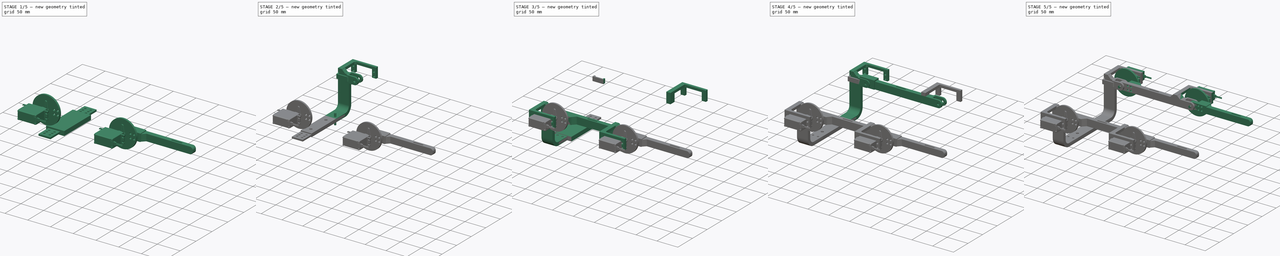
[diagram: build sequence overview — one tinted view per stage of 5, left to right]
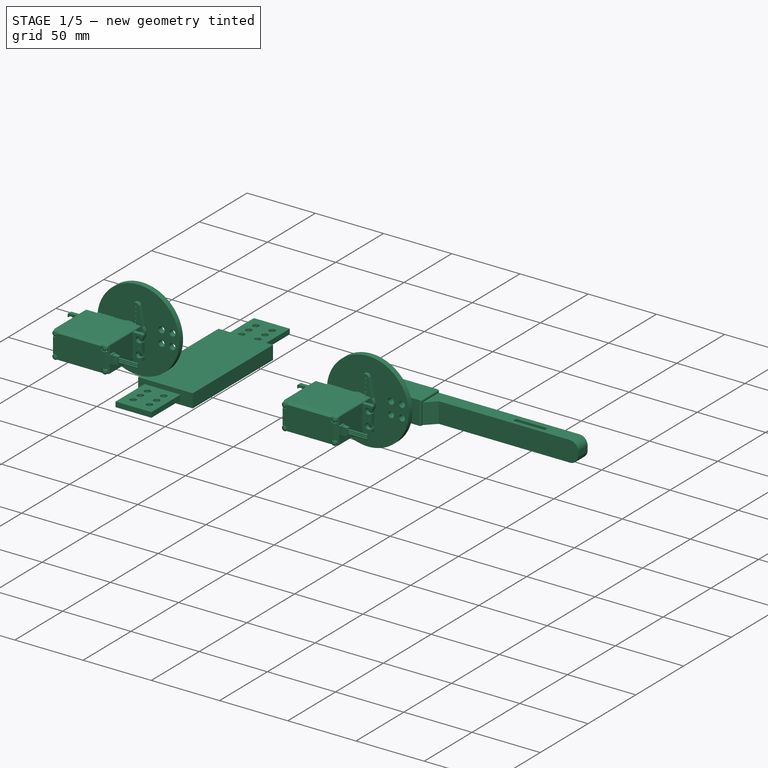
[diagram: stage 1 of 5 — iso view after this stage's code; geometry added in this stage tinted green]
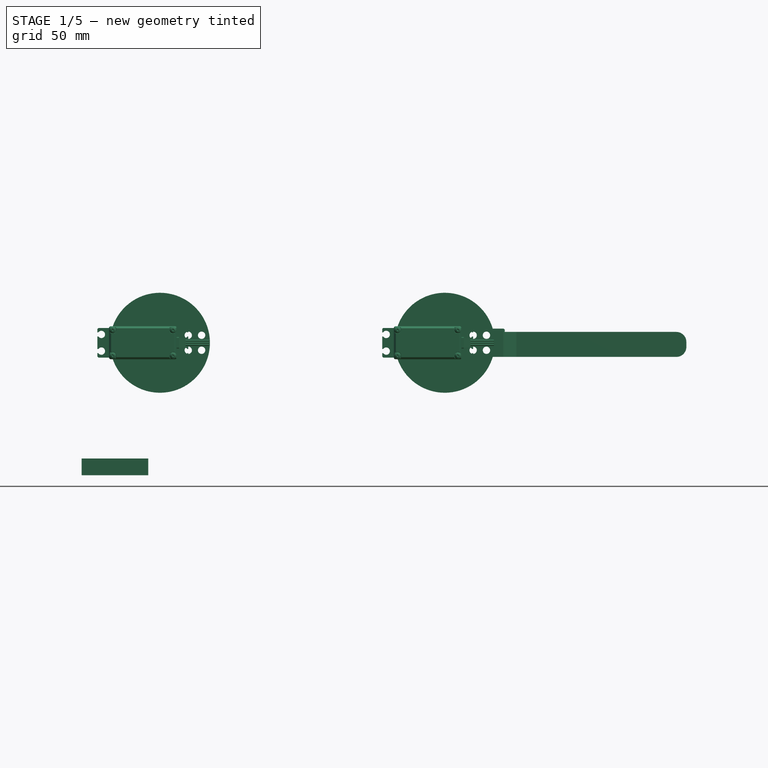
[diagram: stage 1 of 5 — front view after this stage's code; geometry added in this stage tinted green]
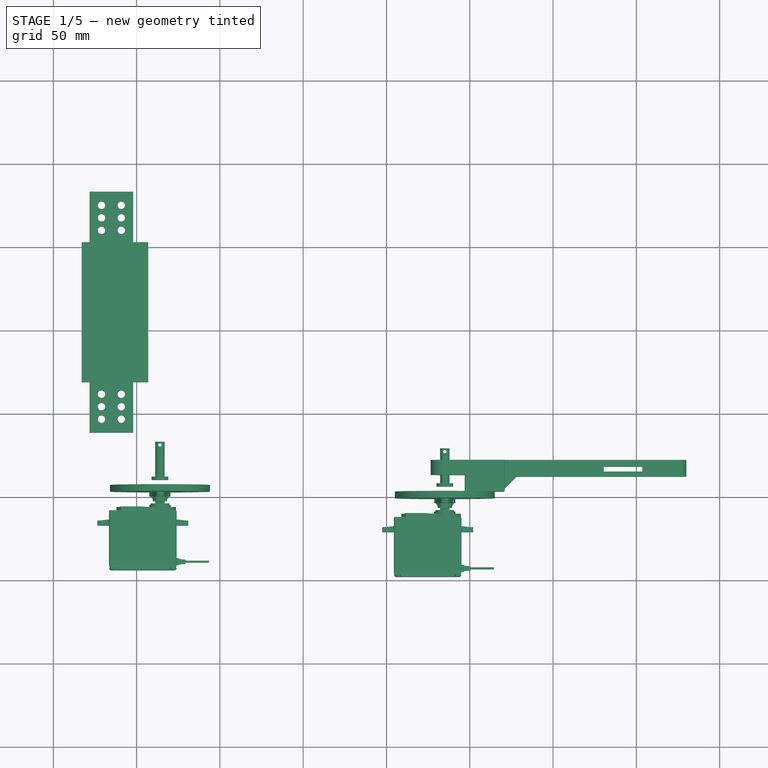
[diagram: stage 1 of 5 — top view after this stage's code; geometry added in this stage tinted green]
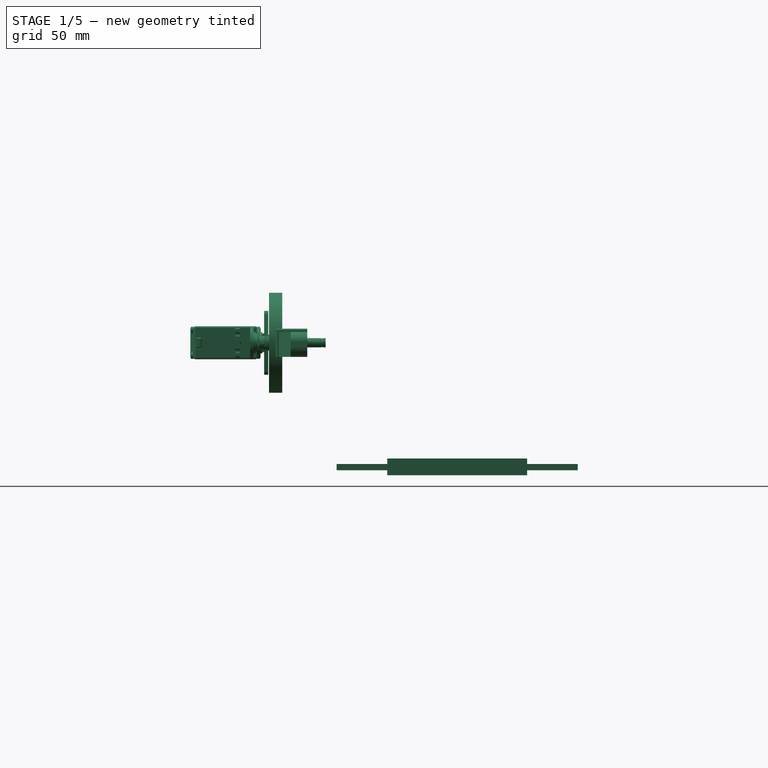
[diagram: stage 1 of 5 — right view after this stage's code; geometry added in this stage tinted green]
FCSTD DOCUMENT  (FreeCAD 0.16R6712 (Git))
Label: Exo
License: All rights reserved
LicenseURL: http://en.wikipedia.org/wiki/All_rights_reserved
objects: Part::MultiFuse×53, Sketcher::SketchObject×52, PartDesign::Pad×52, Part::Feature×52, Part::Cut×41, Part::Box×38, Part::Cylinder×33, Part::Fillet×22, Part::FeaturePython×19, Part::Mirroring×13, Part::Chamfer×8
note: 435 computed .brp shape members not serialized (recipe doc carries the construction recipe); baked Part::Feature solids carry a one-line shape summary decoded from their .brp

FEATURE [Part::Cylinder] Cylinder035  label="Taladro_cadera_centro001"
  Angle = 360
  Height = 26
  Placement = pos=(-9.2,-39.8,-80) rot=(0,0,1;0rad)
  Radius = 2.2
FEATURE [Part::FeaturePython] Array009  label="Taladros_cadera_centro"  # Draft array (typed FeaturePython)
  Angle = 360
  ArrayType = 0
  Axis = (0,0,1)
  Base = -> Cylinder035
  Center = (0,0,0)
  Fuse = false
  IntervalAxis = (0,0,0)
  IntervalX = (-11.9,0,0)
  IntervalY = (0,7.5,0)
  IntervalZ = (0,0,0)
  NumberPolar = 1
  NumberX = 2
  NumberY = 3
  NumberZ = 1
FEATURE [Part::Box] Box040  label="Alas_cadera001"
  Height = 3.7
  Length = 26.3
  Placement = pos=(-28.3,-163.4,-68) rot=(0,0,1;0rad)
  Width = 144.8
FEATURE [Part::Box] Box041  label="Cadera_base_centro001"
  Height = 8
  Length = 26.3
  Placement = pos=(-28.3,-133,-70) rot=(0,0,1;0rad)
  Width = 84
FEATURE [Part::MultiFuse] Fusion009003047  label="Cadera_centro_sin_taladro"
  Placement = pos=(0,2,0) rot=(0,0,1;0rad)
  Shapes = -> [Box040,Box041]
FEATURE [Part::Cut] Cut035  label="Cadera_centro_taladro"
  Base = -> Fusion009003047
  Tool = -> Array009
FEATURE [Part::Cylinder] Cylinder036  label="Taladro_cadera_centro002"
  Angle = 360
  Height = 26
  Placement = pos=(-9.2,-39.8,-80) rot=(0,0,1;0rad)
  Radius = 2.2
FEATURE [Part::FeaturePython] Array010  label="Taladros_cadera_centro1"  # Draft array (typed FeaturePython)
  Angle = 360
  ArrayType = 0
  Axis = (0,0,1)
  Base = -> Cylinder036
  Center = (0,0,0)
  Fuse = false
  IntervalAxis = (0,0,0)
  IntervalX = (-11.9,0,0)
  IntervalY = (0,7.5,0)
  IntervalZ = (0,0,0)
  NumberPolar = 1
  NumberX = 2
  NumberY = 3
  NumberZ = 1
  Placement = pos=(0,-113.4,0) rot=(0,0,1;0rad)
FEATURE [Part::Cut] Cut036  label="Cadara_centro"
  Base = -> Cut035
  Tool = -> Array010
FEATURE [Part::Box] Box053  label="Corte_cadera001"
  Height = 10
  Length = 40
  Placement = pos=(-33,-131,-71) rot=(0,0,1;0rad)
  Width = 84
FEATURE [Part::Cylinder] Cylinder042  label="Taladro_cintura"
  Angle = 360
  Height = 10
  Placement = pos=(-15.15,-63.15,-71) rot=(0,0,1;0rad)
  Radius = 3.15
FEATURE [Part::FeaturePython] Array016  label="taladros_union_CP"  # Draft array (typed FeaturePython)
  Angle = 360
  ArrayType = 0
  Axis = (0,0,1)
  Base = -> Cylinder042
  Center = (0,0,0)
  Fuse = false
  IntervalAxis = (0,0,0)
  IntervalX = (1,0,0)
  IntervalY = (0,-51.7,0)
  IntervalZ = (0,0,0)
  NumberPolar = 1
  NumberX = 1
  NumberY = 2
  NumberZ = 1
FEATURE [Part::Cut] Cut049  label="cadera_centro_full"
  Base = -> Cut036
  Tool = -> Array016
FEATURE [Part::Box] Box057  label="Base_tibia001"
  Height = 15
  Length = 130
  Placement = pos=(200,1.5,0) rot=(0,0,1;0rad)
  Width = 10
FEATURE [Sketcher::SketchObject] Sketch072  label="Boceto_tibia_gancho003"
  Placement = pos=(221,10.5,0) rot=(1,0,0;1.5708rad)
  sketch-geometry (5):
    g0: LineSegment StartX=0 StartY=17 StartZ=0 EndX=-36 EndY=17 EndZ=0
    g1: LineSegment StartX=-36 StartY=1.3e-11 StartZ=0 EndX=0 EndY=1.3e-11 EndZ=0
    g2: LineSegment StartX=0 StartY=1.3e-11 StartZ=0 EndX=0 EndY=17 EndZ=0
    g3: ArcOfCircle CenterX=-36 CenterY=8.5 CenterZ=0 NormalX=0 NormalY=0 NormalZ=1 Radius=8.5 StartAngle=1.57079 EndAngle=4.71239
    g4: Circle CenterX=-36 CenterY=8.5 CenterZ=0 NormalX=0 NormalY=0 NormalZ=1 Radius=3
  constraints (14):
    c: Coincident(g1,g2)
    c: Coincident(g2,g0)
    c: Horizontal(g0)
    c: Horizontal(g1)
    c: Vertical(g2)
    c: Coincident(g3,g0)
    c: DistanceX(g0,g0) = 36
    c: DistanceY(g2,g2) = 17
    c: Radius(g3) = 8.5
    c: Equal(g0,g1)
    c: Coincident(g3,g1)
    c: Coincident(g1,g-1)
    c: Coincident(g4,g3)
    c: Radius(g4) = 3
FEATURE [PartDesign::Pad] Pad073  label="Circulo_tibia_gancho003"
  Length = 9
  Length2 = 100
  Placement = pos=(221,10.5,0) rot=(1,0,0;1.5708rad)
  Sketch = -> Sketch072
  Type = 0
FEATURE [Part::Cylinder] Cylinder043  label="Eje002"
  Angle = 360
  Height = 21
  Placement = pos=(0,0,2) rot=(0,0,1;0rad)
  Radius = 2.8
FEATURE [Part::Fillet] Fillet025  label="Tibia_gancho_redondeado001"
  Base = -> Pad073
  Edges = 2 edges r=1: [Edge1,Edge8]
FEATURE [Part::MultiFuse] Fusion009003068  label="Tibia_gancho001"
  Placement = pos=(0,-0.5,0) rot=(0,0,1;0rad)
  Shapes = -> [Fillet025,Box057]
FEATURE [Part::Cylinder] Cylinder044  label="Tope_eje002"
  Angle = 360
  Height = 2
  Radius = 5
FEATURE [Sketcher::SketchObject] Sketch073  label="Pin_eje002"
  Placement = pos=(0,4.2,21) rot=(1,0,0;1.5708rad)
  sketch-geometry (1):
    g0: Circle CenterX=0 CenterY=0 CenterZ=0 NormalX=0 NormalY=0 NormalZ=1 Radius=1
  constraints (2):
    c: Coincident(g0,g-1)
    c: Radius(g0) = 1
FEATURE [PartDesign::Pad] Pad074
  Length = 10
  Length2 = 100
  Placement = pos=(0,4.2,21) rot=(1,0,0;1.5708rad)
  Sketch = -> Sketch073
  Type = 0
FEATURE [Part::MultiFuse] Fusion009003069  label="Eje_con_tope002"
  Shapes = -> [Cylinder044,Cylinder043]
FEATURE [Part::Cut] Cut050  label="Eje_full002"
  Base = -> Fusion009003069
  Placement = pos=(185,17,8.5) rot=(1,0,0;1.5708rad)
  Tool = -> Pad074
FEATURE [Part::Feature] Part__Feature039  label="TOWER PRO MG-995, ANALOG SERVO, BODY, BOTTOM003"
  Placement = pos=(-10.275,40.78,0) rot=(0.707107,0,-0.707107;3.14159rad)
  shape: bbox 40.6 x 6.4 x 19.8 mm, 74 faces (baked)
FEATURE [Part::Feature] Part__Feature040  label="TOWER PRO MG-995, ANALOG SERVO, BODY, MIDDLE003"
  Placement = pos=(-10.275,30.53,0) rot=(0.707107,0,-0.707107;3.14159rad)
  shape: bbox 40.6 x 20.5 x 19.8 mm, 10 faces (baked)
FEATURE [Part::Feature] Part__Feature041  label="TOWER PRO MG-995, ANALOG SERVO, BODY, TOP003"
  Placement = pos=(-10.275,20.28,0) rot=(0.707107,0,-0.707107;3.14159rad)
  shape: bbox 54.6 x 13.2 x 19.8 mm, 91 faces (baked)
FEATURE [Part::Feature] Part__Feature042  label="TOWER PRO MG-995, ANALOG SERVO, CONNECTOR012"
  Placement = pos=(10.025,42.0947,0) rot=(0.707107,0,-0.707107;3.14159rad)
  shape: bbox 5.4 x 4.1 x 6.8 mm, 15 faces (baked)
FEATURE [Part::Feature] Part__Feature043  label="TOWER PRO MG-995, ANALOG SERVO, CONNECTOR013"
  Placement = pos=(10.025,42.0947,0) rot=(0.707107,0,-0.707107;3.14159rad)
  shape: bbox 14 x 1.2 x 1.2 mm, 4 faces (baked)
FEATURE [Part::Feature] Part__Feature044  label="TOWER PRO MG-995, ANALOG SERVO, CONNECTOR014"
  Placement = pos=(10.025,42.0947,0) rot=(0.707107,0,-0.707107;3.14159rad)
  shape: bbox 14 x 1.2 x 1.2 mm, 4 faces (baked)
FEATURE [Part::Feature] Part__Feature045  label="TOWER PRO MG-995, ANALOG SERVO, CONNECTOR015"
  Placement = pos=(10.025,42.0947,0) rot=(0.707107,0,-0.707107;3.14159rad)
  shape: bbox 14 x 1.2 x 1.2 mm, 4 faces (baked)
FEATURE [Part::Feature] Part__Feature046  label="TOWER PRO MG-995, ANALOG SERVO, SHAFT003"
  Placement = pos=(0.025,20.28,0) rot=(0.70883,0,0.705379;3.14159rad)
  shape: bbox 5.8 x 17.5 x 5.79 mm, 191 faces (baked)
FEATURE [Part::Feature] Part__Feature047  label="TOWER PRO MG-995, ANALOG SERVO, HORN003"
  Placement = pos=(0,5.78,-0.025) rot=(0.00244,0,0.999997;3.14159rad)
  shape: bbox 12.7 x 5.75 x 38.36 mm, 132 faces (baked)
FEATURE [Part::Feature] Part__Feature048  label="pan cross head_am_B18.6.7M - M2 x 0.4 x 10 Type I Cross Recessed PHMS --10N012"
  Placement = pos=(-28.375,47.28,7.7) rot=(-0.57735,0.57735,0.57735;4.18879rad)
  shape: bbox 4.33 x 11.6 x 4.33 mm, 23 faces (baked)
FEATURE [Part::Feature] Part__Feature049  label="pan cross head_am_B18.6.7M - M2 x 0.4 x 10 Type I Cross Recessed PHMS --10N013"
  Placement = pos=(-28.375,47.28,-7.7) rot=(-0.57735,0.57735,0.57735;4.18879rad)
  shape: bbox 4.33 x 11.6 x 4.33 mm, 23 faces (baked)
FEATURE [Part::Feature] Part__Feature050  label="pan cross head_am_B18.6.7M - M2 x 0.4 x 10 Type I Cross Recessed PHMS --10N014"
  Placement = pos=(7.825,47.28,-7.7) rot=(-0.57735,0.57735,0.57735;4.18879rad)
  shape: bbox 4.33 x 11.6 x 4.33 mm, 23 faces (baked)
FEATURE [Part::Feature] Part__Feature051  label="pan cross head_am_B18.6.7M - M2 x 0.4 x 10 Type I Cross Recessed PHMS --10N015"
  Placement = pos=(7.825,47.28,7.7) rot=(-0.57735,0.57735,0.57735;4.18879rad)
  shape: bbox 4.33 x 11.6 x 4.33 mm, 23 faces (baked)
FEATURE [Part::MultiFuse] Fusion009003070  label="Servo_MG996R001"
  Placement = pos=(185,24,8.5) rot=(0,0,1;0rad)
  Shapes = -> [Part__Feature039,Part__Feature040,Part__Feature041,Part__Feature042,Part__Feature043,Part__Feature044,Part__Feature045,Part__Feature046,Part__Feature047,Part__Feature048,Part__Feature049,Part__Feature050,Part__Feature051]
FEATURE [Part::Cylinder] Cylinder045  label="Circulo_traccion002"
  Angle = 360
  Height = 4
  Placement = pos=(185,20,8.5) rot=(-1,0,0;1.5708rad)
  Radius = 30
FEATURE [Part::Box] Box058  label="Suj_traccion003"
  Height = 17
  Length = 24
  Placement = pos=(197,10,0) rot=(0,0,1;0rad)
  Width = 10
FEATURE [Part::Fillet] Fillet026  label="Suje_traccion001"
  Base = -> Box058
  Edges = 4 edges r=1: [Edge2,Edge4,Edge6,Edge7]
FEATURE [Part::Box] Box059  label="Agarre003"
  Height = 20
  Length = 23
  Placement = pos=(280.5,5,0) rot=(0,0,1;0rad)
  Width = 3
FEATURE [Part::Cut] Cut051  label="Tibia_agarre001"
  Base = -> Fusion009003068
  Tool = -> Box059
FEATURE [Part::MultiFuse] Fusion009003071  label="Tibia_suje_traccion001"
  Shapes = -> [Fillet026,Cut051]
FEATURE [Part::Chamfer] Chamfer010  label="Tibia_refuerzo001"
  Base = -> Fusion009003071
  Edges = 1 edges r=7: [Edge4]
FEATURE [Part::Cylinder] Cylinder046  label="Taladro_suje_traccion005"
  Angle = 360
  Height = 26
  Placement = pos=(202,0,4) rot=(-1,0,0;1.5708rad)
  Radius = 2.2
FEATURE [Part::FeaturePython] Array017  label="Taladros_suje_traccion005"  # Draft array (typed FeaturePython)
  Angle = 360
  ArrayType = 0
  Axis = (0,0,1)
  Base = -> Cylinder046
  Center = (0,0,0)
  Fuse = false
  IntervalAxis = (0,0,0)
  IntervalX = (8,0,0)
  IntervalY = (0,1,0)
  IntervalZ = (0,0,9)
  NumberPolar = 1
  NumberX = 2
  NumberY = 1
  NumberZ = 2
FEATURE [Part::Cut] Cut052  label="Tibia001"
  Base = -> Chamfer010
  Tool = -> Array017
FEATURE [Part::Cylinder] Cylinder047  label="Taladro_suje_traccion006"
  Angle = 360
  Height = 26
  Placement = pos=(202,0,4) rot=(-1,0,0;1.5708rad)
  Radius = 2.2
FEATURE [Part::FeaturePython] Array018  label="Taladros_suje_traccion006"  # Draft array (typed FeaturePython)
  Angle = 360
  ArrayType = 0
  Axis = (0,0,1)
  Base = -> Cylinder047
  Center = (0,0,0)
  Fuse = false
  IntervalAxis = (0,0,0)
  IntervalX = (8,0,0)
  IntervalY = (0,1,0)
  IntervalZ = (0,0,9)
  NumberPolar = 1
  NumberX = 2
  NumberY = 1
  NumberZ = 2
FEATURE [Part::Cut] Cut053  label="Traccion002"
  Base = -> Cylinder045
  Tool = -> Array018
FEATURE [Part::Fillet] Fillet027  label="Tibia_redondeada001"
  Base = -> Cut052
  Edges = 2 edges r=6: [Edge9,Edge21]
FEATURE [Part::Feature] Part__Feature052  label="TOWER PRO MG-995, ANALOG SERVO, BODY, BOTTOM004"
  Placement = pos=(-10.275,40.78,0) rot=(0.707107,0,-0.707107;3.14159rad)
  shape: bbox 40.6 x 6.4 x 19.8 mm, 74 faces (baked)
FEATURE [Part::Feature] Part__Feature053  label="TOWER PRO MG-995, ANALOG SERVO, BODY, MIDDLE004"
  Placement = pos=(-10.275,30.53,0) rot=(0.707107,0,-0.707107;3.14159rad)
  shape: bbox 40.6 x 20.5 x 19.8 mm, 10 faces (baked)
FEATURE [Part::Feature] Part__Feature054  label="TOWER PRO MG-995, ANALOG SERVO, BODY, TOP004"
  Placement = pos=(-10.275,20.28,0) rot=(0.707107,0,-0.707107;3.14159rad)
  shape: bbox 54.6 x 13.2 x 19.8 mm, 91 faces (baked)
FEATURE [Part::Feature] Part__Feature055  label="TOWER PRO MG-995, ANALOG SERVO, CONNECTOR016"
  Placement = pos=(10.025,42.0947,0) rot=(0.707107,0,-0.707107;3.14159rad)
  shape: bbox 5.4 x 4.1 x 6.8 mm, 15 faces (baked)
FEATURE [Part::Feature] Part__Feature056  label="TOWER PRO MG-995, ANALOG SERVO, CONNECTOR017"
  Placement = pos=(10.025,42.0947,0) rot=(0.707107,0,-0.707107;3.14159rad)
  shape: bbox 14 x 1.2 x 1.2 mm, 4 faces (baked)
FEATURE [Part::Feature] Part__Feature057  label="TOWER PRO MG-995, ANALOG SERVO, CONNECTOR018"
  Placement = pos=(10.025,42.0947,0) rot=(0.707107,0,-0.707107;3.14159rad)
  shape: bbox 14 x 1.2 x 1.2 mm, 4 faces (baked)
FEATURE [Part::Feature] Part__Feature058  label="TOWER PRO MG-995, ANALOG SERVO, CONNECTOR019"
  Placement = pos=(10.025,42.0947,0) rot=(0.707107,0,-0.707107;3.14159rad)
  shape: bbox 14 x 1.2 x 1.2 mm, 4 faces (baked)
FEATURE [Part::Feature] Part__Feature059  label="TOWER PRO MG-995, ANALOG SERVO, SHAFT004"
  Placement = pos=(0.025,20.28,0) rot=(0.70883,0,0.705379;3.14159rad)
  shape: bbox 5.8 x 17.5 x 5.79 mm, 191 faces (baked)
FEATURE [Part::Feature] Part__Feature060  label="TOWER PRO MG-995, ANALOG SERVO, HORN004"
  Placement = pos=(0,5.78,-0.025) rot=(0.00244,0,0.999997;3.14159rad)
  shape: bbox 12.7 x 5.75 x 38.36 mm, 132 faces (baked)
FEATURE [Part::Feature] Part__Feature061  label="pan cross head_am_B18.6.7M - M2 x 0.4 x 10 Type I Cross Recessed PHMS --10N016"
  Placement = pos=(-28.375,47.28,7.7) rot=(-0.57735,0.57735,0.57735;4.18879rad)
  shape: bbox 4.33 x 11.6 x 4.33 mm, 23 faces (baked)
FEATURE [Part::Feature] Part__Feature062  label="pan cross head_am_B18.6.7M - M2 x 0.4 x 10 Type I Cross Recessed PHMS --10N017"
  Placement = pos=(-28.375,47.28,-7.7) rot=(-0.57735,0.57735,0.57735;4.18879rad)
  shape: bbox 4.33 x 11.6 x 4.33 mm, 23 faces (baked)
FEATURE [Part::Feature] Part__Feature063  label="pan cross head_am_B18.6.7M - M2 x 0.4 x 10 Type I Cross Recessed PHMS --10N018"
  Placement = pos=(7.825,47.28,-7.7) rot=(-0.57735,0.57735,0.57735;4.18879rad)
  shape: bbox 4.33 x 11.6 x 4.33 mm, 23 faces (baked)
FEATURE [Part::Feature] Part__Feature064  label="pan cross head_am_B18.6.7M - M2 x 0.4 x 10 Type I Cross Recessed PHMS --10N019"
  Placement = pos=(7.825,47.28,7.7) rot=(-0.57735,0.57735,0.57735;4.18879rad)
  shape: bbox 4.33 x 11.6 x 4.33 mm, 23 faces (baked)
FEATURE [Part::MultiFuse] Fusion009003072  label="Servo_MG996R_002"
  Placement = pos=(14,20,8.5) rot=(0,0,1;0rad)
  Shapes = -> [Part__Feature052,Part__Feature053,Part__Feature054,Part__Feature055,Part__Feature056,Part__Feature057,Part__Feature058,Part__Feature059,Part__Feature060,Part__Feature061,Part__Feature062,Part__Feature063,Part__Feature064]
FEATURE [Part::Cylinder] Cylinder048  label="Eje003"
  Angle = 360
  Height = 21
  Placement = pos=(0,0,2) rot=(0,0,1;0rad)
  Radius = 2.8
FEATURE [Part::Cylinder] Cylinder049  label="Tope_eje003"
  Angle = 360
  Height = 2
  Radius = 5
FEATURE [Sketcher::SketchObject] Sketch074  label="Pin_eje003"
  Placement = pos=(0,4.2,21) rot=(1,0,0;1.5708rad)
  sketch-geometry (1):
    g0: Circle CenterX=0 CenterY=0 CenterZ=0 NormalX=0 NormalY=0 NormalZ=1 Radius=1
  constraints (2):
    c: Coincident(g0,g-1)
    c: Radius(g0) = 1
FEATURE [PartDesign::Pad] Pad075
  Length = 10
  Length2 = 100
  Placement = pos=(0,4.2,21) rot=(1,0,0;1.5708rad)
  Sketch = -> Sketch074
  Type = 0
FEATURE [Part::MultiFuse] Fusion009003073  label="Eje_con_tope003"
  Shapes = -> [Cylinder049,Cylinder048]
FEATURE [Part::Cut] Cut054  label="Eje_full003"
  Base = -> Fusion009003073
  Placement = pos=(14,13,8.5) rot=(1,0,0;1.5708rad)
  Tool = -> Pad075
FEATURE [Part::Cylinder] Cylinder050  label="Circulo_traccion003"
  Angle = 360
  Height = 4
  Placement = pos=(185,20,8.5) rot=(-1,0,0;1.5708rad)
  Radius = 30
FEATURE [Part::Cylinder] Cylinder051  label="Taladro_suje_traccion007"
  Angle = 360
  Height = 26
  Placement = pos=(202,0,4) rot=(-1,0,0;1.5708rad)
  Radius = 2.2
FEATURE [Part::FeaturePython] Array019  label="Taladros_suje_traccion007"  # Draft array (typed FeaturePython)
  Angle = 360
  ArrayType = 0
  Axis = (0,0,1)
  Base = -> Cylinder051
  Center = (0,0,0)
  Fuse = false
  IntervalAxis = (0,0,0)
  IntervalX = (8,0,0)
  IntervalY = (0,1,0)
  IntervalZ = (0,0,9)
  NumberPolar = 1
  NumberX = 2
  NumberY = 1
  NumberZ = 2
FEATURE [Part::Cut] Cut055  label="Traccion003"
  Base = -> Cylinder050
  Placement = pos=(-171,-4,0) rot=(0,0,1;0rad)
  Tool = -> Array019
FEATURE [Part::Cylinder] Cylinder052  label="Centro_traccion001"
  Angle = 360
  Height = 10
  Placement = pos=(185,18,8.5) rot=(-1,0,0;1.5708rad)
  Radius = 2.8
FEATURE [Part::Cut] Cut056  label="Traccion_full001"
  Base = -> Cut053
  Tool = -> Cylinder052
FEATURE [Part::Mirroring] Part__Mirroring014  label="Eje_full2"
  Base = (0,0,0)
  Normal = (0,1,0)
  Placement = pos=(0,-178,0) rot=(0,0,1;0rad)
  Source = -> Cut050
FEATURE [Part::Mirroring] Part__Mirroring015  label="Servo_MG996R002"
  Base = (0,0,0)
  Normal = (0,1,0)
  Placement = pos=(0,-178,0) rot=(0,0,1;0rad)
  Source = -> Fusion009003070
FEATURE [Part::Mirroring] Part__Mirroring016  label="Tibia_derecha_full"
  Base = (0,0,0)
  Normal = (0,1,0)
  Placement = pos=(0,-178,0) rot=(0,0,1;0rad)
  Source = -> Fillet027
FEATURE [Part::Mirroring] Part__Mirroring017  label="Servo_MG996R3"
  Base = (0,0,0)
  Normal = (0,1,0)
  Placement = pos=(0,-178,0) rot=(0,0,1;0rad)
  Source = -> Fusion009003072
FEATURE [Part::Mirroring] Part__Mirroring018  label="Eje_full004"
  Base = (0,0,0)
  Normal = (0,1,0)
  Placement = pos=(0,-178,0) rot=(0,0,1;0rad)
  Source = -> Cut054
FEATURE [Part::Mirroring] Part__Mirroring019  label="Traccion004"
  Base = (0,0,0)
  Normal = (0,1,0)
  Placement = pos=(0,-178,0) rot=(0,0,1;0rad)
  Source = -> Cut055
FEATURE [Part::Mirroring] Part__Mirroring020  label="Traccion_full1"
  Base = (0,0,0)
  Normal = (0,1,0)
  Placement = pos=(0,-178,0) rot=(0,0,1;0rad)
  Source = -> Cut056
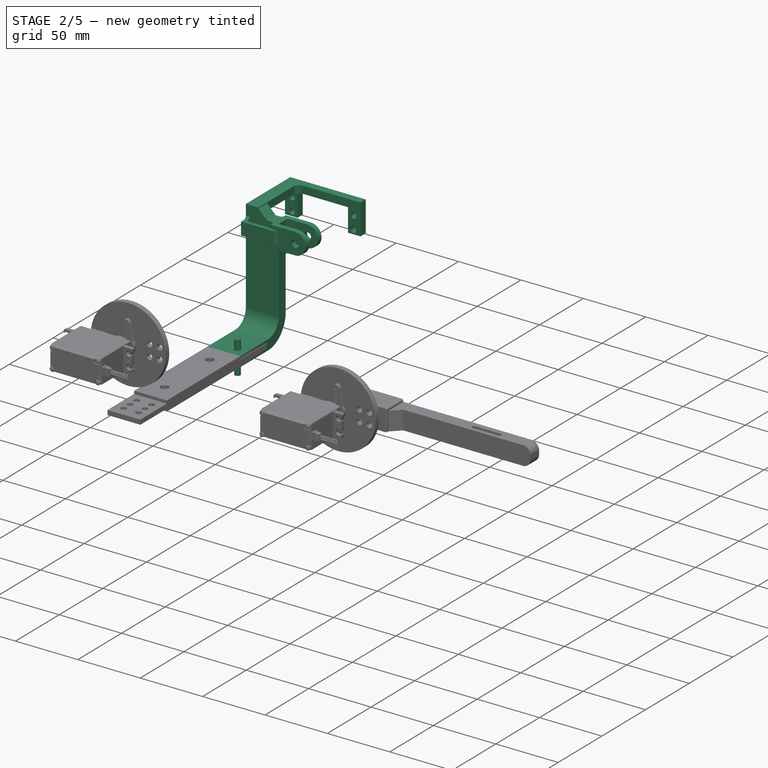
[diagram: stage 2 of 5 — iso view after this stage's code; geometry added in this stage tinted green]
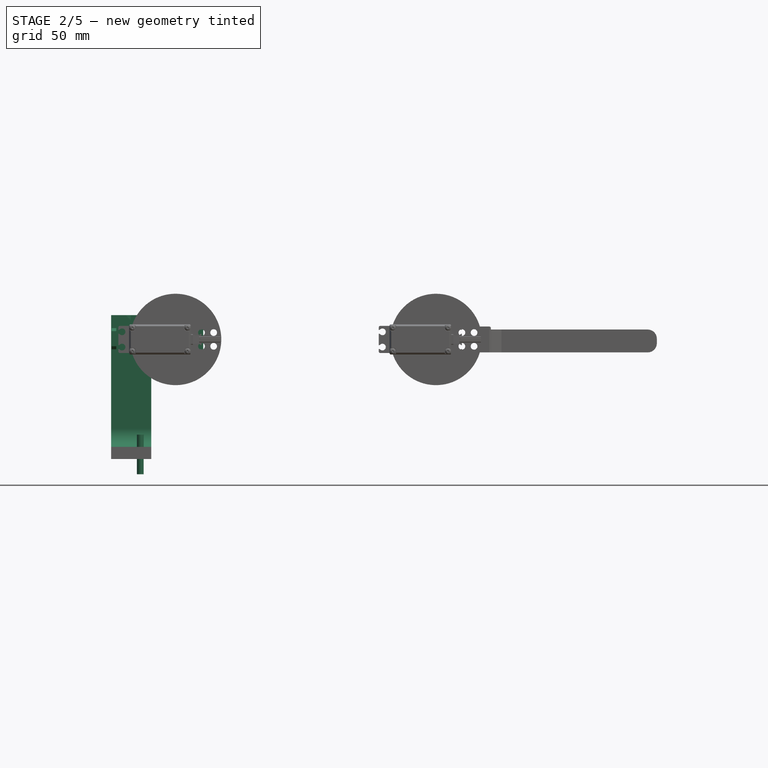
[diagram: stage 2 of 5 — front view after this stage's code; geometry added in this stage tinted green]
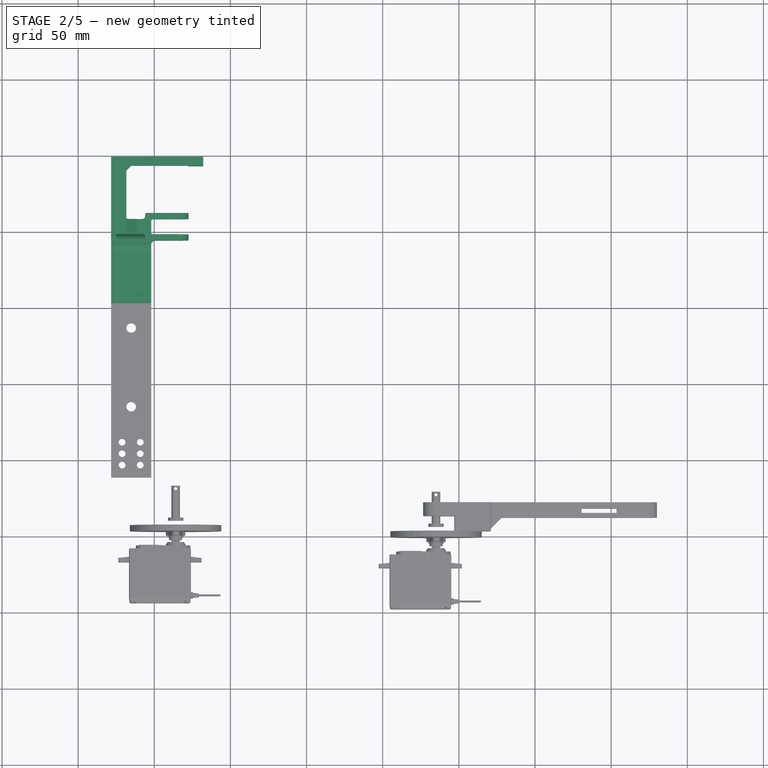
[diagram: stage 2 of 5 — top view after this stage's code; geometry added in this stage tinted green]
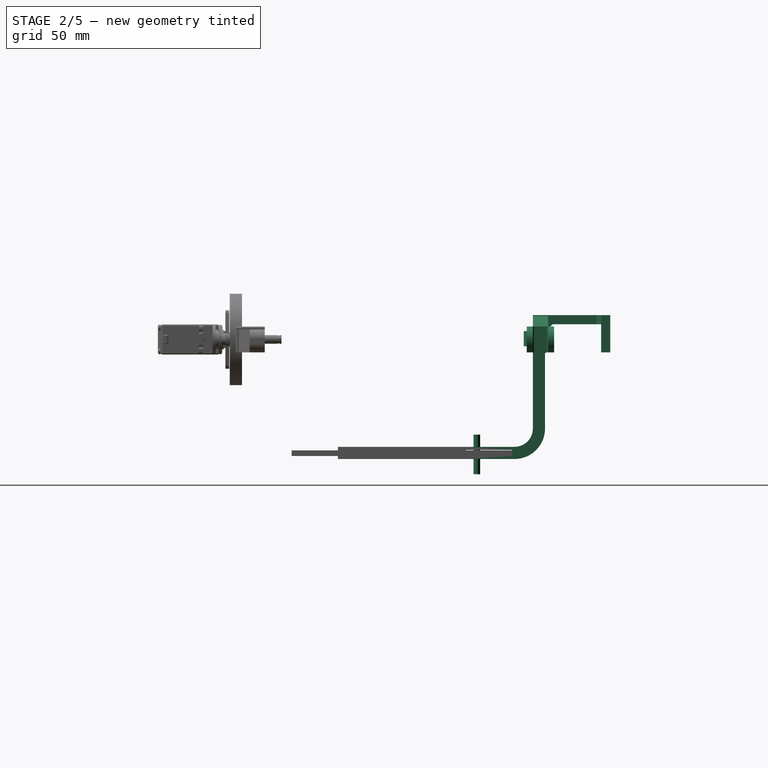
[diagram: stage 2 of 5 — right view after this stage's code; geometry added in this stage tinted green]
FEATURE [Part::Box] Box045  label="Cubo_gancho004"
  Height = 10
  Length = 20
  Placement = pos=(-16,0,4) rot=(0,0,1;0rad)
  Width = 17
FEATURE [Sketcher::SketchObject] Sketch053  label="Boceto_gancho008"
  sketch-geometry (5):
    g0: LineSegment StartX=0 StartY=17 StartZ=0 EndX=20 EndY=17 EndZ=0
    g1: LineSegment StartX=20 StartY=0 StartZ=0 EndX=0 EndY=0 EndZ=0
    g2: LineSegment StartX=0 StartY=0 StartZ=0 EndX=0 EndY=17 EndZ=0
    g3: ArcOfCircle CenterX=20 CenterY=8.5 CenterZ=0 NormalX=0 NormalY=0 NormalZ=1 Radius=8.5 StartAngle=4.71239 EndAngle=7.85398
    g4: Circle CenterX=20 CenterY=8.5 CenterZ=0 NormalX=0 NormalY=0 NormalZ=1 Radius=3
  constraints (14):
    c: Coincident(g1,g2)
    c: Coincident(g2,g0)
    c: Horizontal(g0)
    c: Horizontal(g1)
    c: Vertical(g2)
    c: DistanceY(g2,g2) = 17
    c: DistanceX(g0,g0) = 20
    c: Equal(g0,g1)
    c: Coincident(g3,g0)
    c: Coincident(g3,g1)
    c: Coincident(g-1,g1)
    c: Coincident(g4,g3)
    c: Radius(g3) = 8.5
    c: Radius(g4) = 3
FEATURE [PartDesign::Pad] Pad055  label="Ciculo_gancho009"
  Length = 4
  Length2 = 100
  Sketch = -> Sketch053
  Type = 0
FEATURE [Sketcher::SketchObject] Sketch054  label="Boceto_gancho009"
  Placement = pos=(0,0,14) rot=(0,0,1;0rad)
  sketch-geometry (5):
    g0: LineSegment StartX=0 StartY=17 StartZ=0 EndX=20 EndY=17 EndZ=0
    g1: LineSegment StartX=20 StartY=0 StartZ=0 EndX=0 EndY=0 EndZ=0
    g2: LineSegment StartX=0 StartY=0 StartZ=0 EndX=0 EndY=17 EndZ=0
    g3: ArcOfCircle CenterX=20 CenterY=8.5 CenterZ=0 NormalX=0 NormalY=0 NormalZ=1 Radius=8.5 StartAngle=4.71239 EndAngle=7.85398
    g4: Circle CenterX=20 CenterY=8.5 CenterZ=0 NormalX=0 NormalY=0 NormalZ=1 Radius=3
  constraints (14):
    c: Coincident(g1,g2)
    c: Coincident(g2,g0)
    c: Horizontal(g0)
    c: Horizontal(g1)
    c: Vertical(g2)
    c: DistanceY(g2,g2) = 17
    c: DistanceX(g0,g0) = 20
    c: Equal(g0,g1)
    c: Coincident(g3,g0)
    c: Coincident(g3,g1)
    c: Coincident(g-1,g1)
    c: Coincident(g4,g3)
    c: Radius(g4) = 3
    c: Radius(g3) = 8.5
FEATURE [PartDesign::Pad] Pad056  label="Ciculo_gancho010"
  Length = 4
  Length2 = 100
  Placement = pos=(0,0,14) rot=(0,0,1;0rad)
  Sketch = -> Sketch054
  Type = 0
FEATURE [Part::MultiFuse] Fusion009003052  label="Gancho004"
  Shapes = -> [Box045,Pad055,Pad056]
FEATURE [Part::Fillet] Fillet019  label="Gancho_redondeo004"
  Base = -> Fusion009003052
  Edges = 4 edges r=1: [Edge10,Edge27,Edge28,Edge34]
  Placement = pos=(16,15,0) rot=(1,0,0;1.5708rad)
FEATURE [Part::Fillet] Fillet020  label="Gancho_cadera_003"
  Base = -> Fillet019
  Edges = 4 edges: [Edge36 r=2,Edge37 r=1,Edge41 r=1,Edge47 r=2]
  Placement = pos=(-20,-9,0) rot=(0,0,1;0rad)
FEATURE [Part::Box] Box046  label="Cubo_externo002"
  Height = 17
  Length = 16.3
  Placement = pos=(-26.3,-8,0) rot=(0,0,1;0rad)
  Width = 10
FEATURE [Sketcher::SketchObject] Sketch055  label="Boceto_cadera001"
  Placement = pos=(0,0,0) rot=(0.57735,0.57735,-0.57735;4.18879rad)
  sketch-geometry (12):
    g0: LineSegment StartX=-188 StartY=0 StartZ=0 EndX=-188 EndY=50 EndZ=0
    g1: LineSegment StartX=-168 StartY=70 StartZ=0 EndX=-20 EndY=70 EndZ=0
    g2: LineSegment StartX=0 StartY=50 StartZ=0 EndX=0 EndY=0 EndZ=0
    g3: LineSegment StartX=0 StartY=0 StartZ=0 EndX=-8 EndY=0 EndZ=0
    g4: LineSegment StartX=-8 StartY=0 StartZ=0 EndX=-8 EndY=50 EndZ=0
    g5: LineSegment StartX=-20 StartY=62 StartZ=0 EndX=-168 EndY=62 EndZ=0
    g6: LineSegment StartX=-180 StartY=50 StartZ=0 EndX=-180 EndY=0 EndZ=0
    g7: LineSegment StartX=-180 StartY=0 StartZ=0 EndX=-188 EndY=0 EndZ=0
    g8: ArcOfCircle CenterX=-168 CenterY=50 CenterZ=0 NormalX=0 NormalY=0 NormalZ=1 Radius=12 StartAngle=1.5708 EndAngle=3.14159
    g9: ArcOfCircle CenterX=-168 CenterY=50 CenterZ=0 NormalX=0 NormalY=0 NormalZ=1 Radius=20 StartAngle=1.5708 EndAngle=3.14159
    g10: ArcOfCircle CenterX=-20 CenterY=50 CenterZ=0 NormalX=0 NormalY=0 NormalZ=1 Radius=12 StartAngle=0 EndAngle=1.5708
    g11: ArcOfCircle CenterX=-20 CenterY=50 CenterZ=0 NormalX=0 NormalY=0 NormalZ=1 Radius=20 StartAngle=0 EndAngle=1.5708
  constraints (32):
    c: Vertical(g0)
    c: Horizontal(g1)
    c: Vertical(g2)
    c: Coincident(g2,g3)
    c: Coincident(g3,g4)
    c: Vertical(g4)
    c: Horizontal(g5)
    c: Vertical(g6)
    c: Coincident(g6,g7)
    c: Coincident(g7,g0)
    c: Horizontal(g7)
    c: Horizontal(g3)
    c: DistanceX(g3,g3) = 8
    c: Equal(g6,g4)
    c: PointOnObject(g2,g-1)
    c: PointOnObject(g2,g-2)
    c: DistanceX(g7,g7) = 8
    c: Tangent(g6,g8) = -1.5708
    c: Tangent(g5,g8) = -1.5708
    c: Tangent(g0,g9) = 1.5708
    c: Tangent(g1,g9) = 1.5708
    c: Tangent(g5,g10) = -1.5708
    c: Tangent(g2,g11) = 1.5708
    c: Tangent(g1,g11) = 1.5708
    c: Coincident(g10,g11)
    c: Radius(g10) = 12
    c: PointOnObject(g6,g-1)
    c: Coincident(g8,g9)
    c: Equal(g10,g8)
    c: DistanceY(g2,g2) = 50
    c: Coincident(g10,g4)
    c: DistanceX(g1,g1) = 148
FEATURE [PartDesign::Pad] Pad054  label="Base_cadera001"
  Length = 26.3
  Length2 = 100
  Placement = pos=(0,0,0) rot=(0.57735,0.57735,-0.57735;4.18879rad)
  Sketch = -> Sketch055
  Type = 0
FEATURE [Part::MultiFuse] Fusion009003055  label="Gancho_cadera002"
  Shapes = -> [Fillet020,Box046]
FEATURE [Part::Box] Box049  label="Cubo_gancho005"
  Height = 10
  Length = 20
  Placement = pos=(-16,0,4) rot=(0,0,1;0rad)
  Width = 17
FEATURE [Sketcher::SketchObject] Sketch057  label="Boceto_gancho010"
  sketch-geometry (5):
    g0: LineSegment StartX=0 StartY=17 StartZ=0 EndX=20 EndY=17 EndZ=0
    g1: LineSegment StartX=20 StartY=0 StartZ=0 EndX=0 EndY=0 EndZ=0
    g2: LineSegment StartX=0 StartY=0 StartZ=0 EndX=0 EndY=17 EndZ=0
    g3: ArcOfCircle CenterX=20 CenterY=8.5 CenterZ=0 NormalX=0 NormalY=0 NormalZ=1 Radius=8.5 StartAngle=4.71239 EndAngle=7.85398
    g4: Circle CenterX=20 CenterY=8.5 CenterZ=0 NormalX=0 NormalY=0 NormalZ=1 Radius=3
  constraints (14):
    c: Coincident(g1,g2)
    c: Coincident(g2,g0)
    c: Horizontal(g0)
    c: Horizontal(g1)
    c: Vertical(g2)
    c: DistanceY(g2,g2) = 17
    c: DistanceX(g0,g0) = 20
    c: Equal(g0,g1)
    c: Coincident(g3,g0)
    c: Coincident(g3,g1)
    c: Coincident(g-1,g1)
    c: Coincident(g4,g3)
    c: Radius(g3) = 8.5
    c: Radius(g4) = 3
FEATURE [PartDesign::Pad] Pad058  label="Ciculo_gancho011"
  Length = 4
  Length2 = 100
  Sketch = -> Sketch057
  Type = 0
FEATURE [Sketcher::SketchObject] Sketch058  label="Boceto_gancho011"
  Placement = pos=(0,0,14) rot=(0,0,1;0rad)
  sketch-geometry (5):
    g0: LineSegment StartX=0 StartY=17 StartZ=0 EndX=20 EndY=17 EndZ=0
    g1: LineSegment StartX=20 StartY=0 StartZ=0 EndX=0 EndY=0 EndZ=0
    g2: LineSegment StartX=0 StartY=0 StartZ=0 EndX=0 EndY=17 EndZ=0
    g3: ArcOfCircle CenterX=20 CenterY=8.5 CenterZ=0 NormalX=0 NormalY=0 NormalZ=1 Radius=8.5 StartAngle=4.71239 EndAngle=7.85398
    g4: Circle CenterX=20 CenterY=8.5 CenterZ=0 NormalX=0 NormalY=0 NormalZ=1 Radius=3
  constraints (14):
    c: Coincident(g1,g2)
    c: Coincident(g2,g0)
    c: Horizontal(g0)
    c: Horizontal(g1)
    c: Vertical(g2)
    c: DistanceY(g2,g2) = 17
    c: DistanceX(g0,g0) = 20
    c: Equal(g0,g1)
    c: Coincident(g3,g0)
    c: Coincident(g3,g1)
    c: Coincident(g-1,g1)
    c: Coincident(g4,g3)
    c: Radius(g4) = 3
    c: Radius(g3) = 8.5
FEATURE [PartDesign::Pad] Pad059  label="Ciculo_gancho012"
  Length = 4
  Length2 = 100
  Placement = pos=(0,0,14) rot=(0,0,1;0rad)
  Sketch = -> Sketch058
  Type = 0
FEATURE [Part::MultiFuse] Fusion009003056  label="Gancho005"
  Shapes = -> [Box049,Pad058,Pad059]
FEATURE [Part::Fillet] Fillet021  label="Gancho_redondeo005"
  Base = -> Fusion009003056
  Edges = 4 edges r=1: [Edge10,Edge27,Edge28,Edge34]
  Placement = pos=(16,15,0) rot=(1,0,0;1.5708rad)
FEATURE [Part::Fillet] Fillet022  label="Gancho_cadera_004"
  Base = -> Fillet021
  Edges = 4 edges: [Edge36 r=2,Edge37 r=1,Edge41 r=1,Edge47 r=2]
  Placement = pos=(-20,-9,0) rot=(0,0,1;0rad)
FEATURE [Part::Box] Box050  label="Cubo_externo003"
  Height = 17
  Length = 16.3
  Placement = pos=(-26.3,-8,0) rot=(0,0,1;0rad)
  Width = 10
FEATURE [Part::MultiFuse] Fusion009003057  label="Gancho_cadera003"
  Placement = pos=(0,-182,0) rot=(0,0,1;0rad)
  Shapes = -> [Fillet022,Box050]
FEATURE [Part::MultiFuse] Fusion009003058  label="Ganchos_cadera001"
  Shapes = -> [Fusion009003055,Fusion009003057]
FEATURE [Part::MultiFuse] Fusion009003059  label="Cadera_ganchos001"
  Placement = pos=(-2,5,0) rot=(0,0,1;0rad)
  Shapes = -> [Pad054,Fusion009003058]
FEATURE [Part::Box] Box051  label="Resta_sujetador_cadera002"
  Height = 30
  Length = 12
  Placement = pos=(-29.5,-13,0) rot=(0,0,1;0rad)
  Width = 10
FEATURE [Sketcher::SketchObject] Sketch059  label="Boceto_suje_motor009"
  Placement = pos=(0,0,0) rot=(0.57735,0.57735,0.57735;2.0944rad)
  sketch-geometry (8):
    g0: LineSegment StartX=14 StartY=0 StartZ=0 EndX=0 EndY=0 EndZ=0
    g1: LineSegment StartX=0 StartY=0 StartZ=0 EndX=0 EndY=24.5 EndZ=0
    g2: LineSegment StartX=0 StartY=24.5 StartZ=0 EndX=54.8 EndY=24.5 EndZ=0
    g3: LineSegment StartX=54.8 StartY=24.5 StartZ=0 EndX=54.8 EndY=0 EndZ=0
    g4: LineSegment StartX=54.8 StartY=0 StartZ=0 EndX=48.8 EndY=0 EndZ=0
    g5: LineSegment StartX=48.8 StartY=0 StartZ=0 EndX=48.8 EndY=18.5 EndZ=0
    g6: LineSegment StartX=48.8 StartY=18.5 StartZ=0 EndX=14 EndY=18.5 EndZ=0
    g7: LineSegment StartX=14 StartY=18.5 StartZ=0 EndX=14 EndY=0 EndZ=0
  constraints (24):
    c: Horizontal(g0)
    c: Coincident(g0,g1)
    c: Vertical(g1)
    c: Coincident(g1,g2)
    c: Horizontal(g2)
    c: Coincident(g2,g3)
    c: Vertical(g3)
    c: Coincident(g3,g4)
    c: Horizontal(g4)
    c: Coincident(g4,g5)
    c: Vertical(g5)
    c: Coincident(g5,g6)
    c: Horizontal(g6)
    c: Coincident(g6,g7)
    c: Coincident(g7,g0)
    c: Vertical(g7)
    c: DistanceX(g0,g0) = 14
    c: DistanceY(g7,g7) = 18.5
    c: Equal(g7,g5)
    c: DistanceY(g1,g1) = 24.5
    c: Equal(g1,g3)
    c: DistanceX(g6,g6) = 34.8
    c: Coincident(g0,g-1)
    c: DistanceX(g4,g4) = 6
FEATURE [PartDesign::Pad] Pad060  label="Suje_motor012"
  Length = 10
  Length2 = 100
  Placement = pos=(0,0,0) rot=(0.57735,0.57735,0.57735;2.0944rad)
  Sketch = -> Sketch059
  Type = 0
FEATURE [Sketcher::SketchObject] Sketch060  label="Boceto_suje_motor010"
  Placement = pos=(10,54.8,0) rot=(1,0,0;1.5708rad)
  sketch-geometry (6):
    g0: LineSegment StartX=0 StartY=18.5 StartZ=0 EndX=0 EndY=24.5 EndZ=0
    g1: LineSegment StartX=0 StartY=24.5 StartZ=0 EndX=50.5 EndY=24.5 EndZ=0
    g2: LineSegment StartX=50.5 StartY=24.5 StartZ=0 EndX=50.5 EndY=0 EndZ=0
    g3: LineSegment StartX=50.5 StartY=0 StartZ=0 EndX=40.5 EndY=0 EndZ=0
    g4: LineSegment StartX=40.5 StartY=0 StartZ=0 EndX=40.5 EndY=18.5 EndZ=0
    g5: LineSegment StartX=40.5 StartY=18.5 StartZ=0 EndX=0 EndY=18.5 EndZ=0
  constraints (18):
    c: Vertical(g0)
    c: Coincident(g0,g1)
    c: Horizontal(g1)
    c: Coincident(g1,g2)
    c: Vertical(g2)
    c: Coincident(g2,g3)
    c: Horizontal(g3)
    c: Coincident(g3,g4)
    c: Vertical(g4)
    c: Coincident(g4,g5)
    c: Coincident(g5,g0)
    c: Horizontal(g5)
    c: DistanceX(g5,g5) = 40.5
    c: DistanceY(g4,g4) = 18.5
    c: PointOnObject(g3,g-1)
    c: PointOnObject(g0,g-2)
    c: DistanceY(g0,g0) = 6
    c: DistanceX(g3,g3) = 10
FEATURE [PartDesign::Pad] Pad061  label="Suje_motor013"
  Length = 6
  Length2 = 100
  Placement = pos=(10,54.8,0) rot=(1,0,0;1.5708rad)
  Sketch = -> Sketch060
  Type = 0
FEATURE [Part::Cylinder] Cylinder039  label="Taladro_suje_motor004"
  Angle = 360
  Height = 18
  Placement = pos=(150.075,41,13.5) rot=(-1,0,0;1.5708rad)
  Radius = 2.2
FEATURE [Part::FeaturePython] Array013  label="Taladros_suje_motor004"  # Draft array (typed FeaturePython)
  Angle = 360
  ArrayType = 0
  Axis = (0,0,1)
  Base = -> Cylinder039
  Center = (0,0,0)
  Fuse = false
  IntervalAxis = (0,0,0)
  IntervalX = (49.2,0,0)
  IntervalY = (0,1,0)
  IntervalZ = (0,0,-10.3)
  NumberPolar = 1
  NumberX = 2
  NumberY = 1
  NumberZ = 2
FEATURE [Part::MultiFuse] Fusion009003060  label="Suje_motor014"
  Placement = pos=(144.425,-3,0) rot=(0,0,1;0rad)
  Shapes = -> [Pad060,Pad061]
FEATURE [Part::Cut] Cut041  label="Sujetador_cadera002"
  Base = -> Fusion009003060
  Placement = pos=(-172.725,-4,0) rot=(0,0,1;0rad)
  Tool = -> Array013
FEATURE [Part::Cut] Cut042  label="Sujetador_cadera_full003"
  Base = -> Cut041
  Tool = -> Box051
FEATURE [Part::Box] Box052  label="Resta_sujetador_cadera003"
  Height = 30
  Length = 12
  Placement = pos=(-29.5,-13,0) rot=(0,0,1;0rad)
  Width = 10
FEATURE [Sketcher::SketchObject] Sketch061  label="Boceto_suje_motor011"
  Placement = pos=(0,0,0) rot=(0.57735,0.57735,0.57735;2.0944rad)
  sketch-geometry (8):
    g0: LineSegment StartX=14 StartY=0 StartZ=0 EndX=0 EndY=0 EndZ=0
    g1: LineSegment StartX=0 StartY=0 StartZ=0 EndX=0 EndY=24.5 EndZ=0
    g2: LineSegment StartX=0 StartY=24.5 StartZ=0 EndX=54.8 EndY=24.5 EndZ=0
    g3: LineSegment StartX=54.8 StartY=24.5 StartZ=0 EndX=54.8 EndY=0 EndZ=0
    g4: LineSegment StartX=54.8 StartY=0 StartZ=0 EndX=48.8 EndY=0 EndZ=0
    g5: LineSegment StartX=48.8 StartY=0 StartZ=0 EndX=48.8 EndY=18.5 EndZ=0
    g6: LineSegment StartX=48.8 StartY=18.5 StartZ=0 EndX=14 EndY=18.5 EndZ=0
    g7: LineSegment StartX=14 StartY=18.5 StartZ=0 EndX=14 EndY=0 EndZ=0
  constraints (24):
    c: Horizontal(g0)
    c: Coincident(g0,g1)
    c: Vertical(g1)
    c: Coincident(g1,g2)
    c: Horizontal(g2)
    c: Coincident(g2,g3)
    c: Vertical(g3)
    c: Coincident(g3,g4)
    c: Horizontal(g4)
    c: Coincident(g4,g5)
    c: Vertical(g5)
    c: Coincident(g5,g6)
    c: Horizontal(g6)
    c: Coincident(g6,g7)
    c: Coincident(g7,g0)
    c: Vertical(g7)
    c: DistanceX(g0,g0) = 14
    c: DistanceY(g7,g7) = 18.5
    c: Equal(g7,g5)
    c: DistanceY(g1,g1) = 24.5
    c: Equal(g1,g3)
    c: DistanceX(g6,g6) = 34.8
    c: Coincident(g0,g-1)
    c: DistanceX(g4,g4) = 6
FEATURE [PartDesign::Pad] Pad062  label="Suje_motor015"
  Length = 10
  Length2 = 100
  Placement = pos=(0,0,0) rot=(0.57735,0.57735,0.57735;2.0944rad)
  Sketch = -> Sketch061
  Type = 0
FEATURE [Sketcher::SketchObject] Sketch062  label="Boceto_suje_motor012"
  Placement = pos=(10,54.8,0) rot=(1,0,0;1.5708rad)
  sketch-geometry (6):
    g0: LineSegment StartX=0 StartY=18.5 StartZ=0 EndX=0 EndY=24.5 EndZ=0
    g1: LineSegment StartX=0 StartY=24.5 StartZ=0 EndX=50.5 EndY=24.5 EndZ=0
    g2: LineSegment StartX=50.5 StartY=24.5 StartZ=0 EndX=50.5 EndY=0 EndZ=0
    g3: LineSegment StartX=50.5 StartY=0 StartZ=0 EndX=40.5 EndY=0 EndZ=0
    g4: LineSegment StartX=40.5 StartY=0 StartZ=0 EndX=40.5 EndY=18.5 EndZ=0
    g5: LineSegment StartX=40.5 StartY=18.5 StartZ=0 EndX=0 EndY=18.5 EndZ=0
  constraints (18):
    c: Vertical(g0)
    c: Coincident(g0,g1)
    c: Horizontal(g1)
    c: Coincident(g1,g2)
    c: Vertical(g2)
    c: Coincident(g2,g3)
    c: Horizontal(g3)
    c: Coincident(g3,g4)
    c: Vertical(g4)
    c: Coincident(g4,g5)
    c: Coincident(g5,g0)
    c: Horizontal(g5)
    c: DistanceX(g5,g5) = 40.5
    c: DistanceY(g4,g4) = 18.5
    c: PointOnObject(g3,g-1)
    c: PointOnObject(g0,g-2)
    c: DistanceY(g0,g0) = 6
    c: DistanceX(g3,g3) = 10
FEATURE [PartDesign::Pad] Pad063  label="Suje_motor016"
  Length = 6
  Length2 = 100
  Placement = pos=(10,54.8,0) rot=(1,0,0;1.5708rad)
  Sketch = -> Sketch062
  Type = 0
FEATURE [Part::Cylinder] Cylinder040  label="Taladro_suje_motor005"
  Angle = 360
  Height = 18
  Placement = pos=(150.075,41,13.5) rot=(-1,0,0;1.5708rad)
  Radius = 2.2
FEATURE [Part::FeaturePython] Array014  label="Taladros_suje_motor005"  # Draft array (typed FeaturePython)
  Angle = 360
  ArrayType = 0
  Axis = (0,0,1)
  Base = -> Cylinder040
  Center = (0,0,0)
  Fuse = false
  IntervalAxis = (0,0,0)
  IntervalX = (49.2,0,0)
  IntervalY = (0,1,0)
  IntervalZ = (0,0,-10.3)
  NumberPolar = 1
  NumberX = 2
  NumberY = 1
  NumberZ = 2
FEATURE [Part::MultiFuse] Fusion009003061  label="Suje_motor017"
  Placement = pos=(144.425,-3,0) rot=(0,0,1;0rad)
  Shapes = -> [Pad062,Pad063]
FEATURE [Part::Cut] Cut043  label="Sujetador_cadera003"
  Base = -> Fusion009003061
  Placement = pos=(-172.725,-4,0) rot=(0,0,1;0rad)
  Tool = -> Array014
FEATURE [Part::Cut] Cut044  label="Sujetador_cadera_full004"
  Base = -> Cut043
  Tool = -> Box052
FEATURE [Part::Mirroring] Part__Mirroring010  label="Sujetador_cadera_full Mirror001"
  Base = (0,0,0)
  Normal = (0,1,0)
  Placement = pos=(0,-178,0) rot=(0,0,1;0rad)
  Source = -> Cut044
FEATURE [Part::MultiFuse] Fusion009003062  label="Cadera_full001"
  Shapes = -> [Fusion009003059,Cut042,Part__Mirroring010]
FEATURE [Sketcher::SketchObject] Sketch063
  Placement = pos=(-28,-175,4) rot=(0,0,1;0rad)
  sketch-geometry (8):
    g0: LineSegment StartX=0 StartY=0 StartZ=0 EndX=0 EndY=6 EndZ=0
    g1: LineSegment StartX=0 StartY=6 StartZ=0 EndX=26 EndY=6 EndZ=0
    g2: LineSegment StartX=26 StartY=6 StartZ=0 EndX=26 EndY=0 EndZ=0
    g3: LineSegment StartX=26 StartY=0 StartZ=0 EndX=23 EndY=0 EndZ=0
    g4: LineSegment StartX=23 StartY=0 StartZ=0 EndX=23 EndY=3 EndZ=0
    g5: LineSegment StartX=23 StartY=3 StartZ=0 EndX=3 EndY=3 EndZ=0
    g6: LineSegment StartX=3 StartY=3 StartZ=0 EndX=3 EndY=0 EndZ=0
    g7: LineSegment StartX=3 StartY=0 StartZ=0 EndX=0 EndY=0 EndZ=0
  constraints (24):
    c: Vertical(g0)
    c: Coincident(g0,g1)
    c: Horizontal(g1)
    c: Coincident(g1,g2)
    c: Vertical(g2)
    c: Coincident(g2,g3)
    c: Horizontal(g3)
    c: Coincident(g3,g4)
    c: Vertical(g4)
    c: Coincident(g4,g5)
    c: Horizontal(g5)
    c: Coincident(g5,g6)
    c: Vertical(g6)
    c: Coincident(g6,g7)
    c: Coincident(g7,g0)
    c: Horizontal(g7)
    c: DistanceX(g5,g5) = 20
    c: DistanceX(g7,g7) = 3
    c: Equal(g3,g7)
    c: DistanceY(g6,g6) = 3
    c: Equal(g4,g6)
    c: DistanceY(g0,g0) = 6
    c: Equal(g0,g2)
    c: Coincident(g0,g-1)
FEATURE [PartDesign::Pad] Pad064  label="suje_cadera002"
  Length = 10
  Length2 = 100
  Placement = pos=(-28,-175,4) rot=(0,0,1;0rad)
  Sketch = -> Sketch063
  Type = 0
FEATURE [Sketcher::SketchObject] Sketch064
  Placement = pos=(-28,-127,4) rot=(0,0,1;0rad)
  sketch-geometry (8):
    g0: LineSegment StartX=0 StartY=0 StartZ=0 EndX=0 EndY=6 EndZ=0
    g1: LineSegment StartX=0 StartY=6 StartZ=0 EndX=26 EndY=6 EndZ=0
    g2: LineSegment StartX=26 StartY=6 StartZ=0 EndX=26 EndY=0 EndZ=0
    g3: LineSegment StartX=26 StartY=0 StartZ=0 EndX=23 EndY=0 EndZ=0
    g4: LineSegment StartX=23 StartY=0 StartZ=0 EndX=23 EndY=3 EndZ=0
    g5: LineSegment StartX=23 StartY=3 StartZ=0 EndX=3 EndY=3 EndZ=0
    g6: LineSegment StartX=3 StartY=3 StartZ=0 EndX=3 EndY=0 EndZ=0
    g7: LineSegment StartX=3 StartY=0 StartZ=0 EndX=0 EndY=0 EndZ=0
  constraints (24):
    c: Vertical(g0)
    c: Coincident(g0,g1)
    c: Horizontal(g1)
    c: Coincident(g1,g2)
    c: Vertical(g2)
    c: Coincident(g2,g3)
    c: Horizontal(g3)
    c: Coincident(g3,g4)
    c: Vertical(g4)
    c: Coincident(g4,g5)
    c: Horizontal(g5)
    c: Coincident(g5,g6)
    c: Vertical(g6)
    c: Coincident(g6,g7)
    c: Coincident(g7,g0)
    c: Horizontal(g7)
    c: DistanceX(g5,g5) = 20
    c: DistanceX(g7,g7) = 3
    c: Equal(g3,g7)
    c: DistanceY(g6,g6) = 3
    c: Equal(g4,g6)
    c: DistanceY(g0,g0) = 6
    c: Equal(g0,g2)
    c: Coincident(g0,g-1)
FEATURE [PartDesign::Pad] Pad065  label="suje_cadera003"
  Length = 10
  Length2 = 100
  Placement = pos=(-28,-127,4) rot=(0,0,1;0rad)
  Sketch = -> Sketch064
  Type = 0
FEATURE [Part::Mirroring] Part__Mirroring011  label="suje_cadera1_Mirror001"
  Base = (0,0,0)
  Normal = (0,1,0)
  Placement = pos=(0,-130,0) rot=(0,0,1;0rad)
  Source = -> Pad065
FEATURE [Part::MultiFuse] Fusion009003063  label="Sujetadores_cadera001"
  Shapes = -> [Pad064,Part__Mirroring011]
FEATURE [Part::MultiFuse] Fusion009003064  label="Cadera_unida001"
  Shapes = -> [Fusion009003062,Fusion009003063]
FEATURE [Part::Chamfer] Chamfer008  label="Cadera_refuerzo_sejetador001"
  Base = -> Fusion009003064
  Edges = 6 edges r=1.9: [Edge20,Edge57,Edge59,Edge109,Edge111,Edge212]
FEATURE [Part::Fillet] Fillet024  label="Cadera_completa_reforzada001"
  Base = -> Chamfer008
  Edges = 4 edges: [Edge31 r=1.5,Edge157 r=1,Edge182 r=1.5,Edge200 r=1]
FEATURE [Part::Box] Box054  label="Cortar_extremo_cadera001"
  Height = 100
  Length = 80
  Placement = pos=(-40,-229,-71) rot=(0,0,1;0rad)
  Width = 100
FEATURE [Part::Box] Box055  label="Alas_cadera002"
  Height = 4
  Length = 26.3
  Placement = pos=(-28.3,-163.4,-68) rot=(0,0,1;0rad)
  Width = 144.8
FEATURE [Sketcher::SketchObject] Sketch069  label="Boceto_refuerzo010"
  Placement = pos=(-18.4,7,17) rot=(1,0,0;1.5708rad)
  sketch-geometry (3):
    g0: LineSegment StartX=0 StartY=0 StartZ=0 EndX=0 EndY=7 EndZ=0
    g1: LineSegment StartX=0 StartY=7 StartZ=0 EndX=7 EndY=0 EndZ=0
    g2: LineSegment StartX=7 StartY=0 StartZ=0 EndX=0 EndY=0 EndZ=0
  constraints (8):
    c: Vertical(g0)
    c: Coincident(g0,g1)
    c: Coincident(g1,g2)
    c: Coincident(g2,g0)
    c: Horizontal(g2)
    c: Coincident(g0,g-1)
    c: DistanceY(g0,g0) = 7
    c: DistanceX(g2,g2) = 7
FEATURE [PartDesign::Pad] Pad069  label="Refuerzo011"
  Length = 10
  Length2 = 100
  Placement = pos=(-18.4,7,17) rot=(1,0,0;1.5708rad)
  Sketch = -> Sketch069
  Type = 0
FEATURE [Sketcher::SketchObject] Sketch070  label="Boceto_refuerzo011"
  Placement = pos=(-28.3,7,18.5) rot=(0,1,0;1.5708rad)
  sketch-geometry (3):
    g0: LineSegment StartX=0 StartY=0 StartZ=0 EndX=0 EndY=3 EndZ=0
    g1: LineSegment StartX=0 StartY=3 StartZ=0 EndX=3 EndY=0 EndZ=0
    g2: LineSegment StartX=3 StartY=0 StartZ=0 EndX=0 EndY=0 EndZ=0
  constraints (8):
    c: Vertical(g0)
    c: Coincident(g0,g1)
    c: Coincident(g1,g2)
    c: Coincident(g2,g0)
    c: Horizontal(g2)
    c: Coincident(g0,g-1)
    c: DistanceY(g0,g0) = 3
    c: DistanceX(g2,g2) = 3
FEATURE [PartDesign::Pad] Pad070  label="Refuerzo012"
  Length = 10
  Length2 = 100
  Placement = pos=(-28.3,7,18.5) rot=(0,1,0;1.5708rad)
  Sketch = -> Sketch070
  Type = 0
FEATURE [Sketcher::SketchObject] Sketch071  label="Boceto_refuerzo012"
  Placement = pos=(-18.3,41.8,18.5) rot=(0,0,-1;1.5708rad)
  sketch-geometry (3):
    g0: LineSegment StartX=0 StartY=0 StartZ=0 EndX=0 EndY=3 EndZ=0
    g1: LineSegment StartX=0 StartY=3 StartZ=0 EndX=3 EndY=0 EndZ=0
    g2: LineSegment StartX=3 StartY=0 StartZ=0 EndX=0 EndY=0 EndZ=0
  constraints (8):
    c: Vertical(g0)
    c: Coincident(g0,g1)
    c: Coincident(g1,g2)
    c: Coincident(g2,g0)
    c: Horizontal(g2)
    c: Coincident(g0,g-1)
    c: DistanceY(g0,g0) = 3
    c: DistanceX(g2,g2) = 3
FEATURE [PartDesign::Pad] Pad071  label="Refuerzo013"
  Length = 6
  Length2 = 100
  Placement = pos=(-18.3,41.8,18.5) rot=(0,0,-1;1.5708rad)
  Sketch = -> Sketch071
  Type = 0
FEATURE [Part::Box] Box056  label="Cadera_base_centro002"
  Height = 8
  Length = 26.3
  Placement = pos=(-28.3,-133,-70) rot=(0,0,1;0rad)
  Width = 84
FEATURE [Part::MultiFuse] Fusion009003065  label="Cadera_centro001"
  Placement = pos=(0,2,0) rot=(0,0,1;0rad)
  Shapes = -> [Box055,Box056]
FEATURE [Part::Cylinder] Cylinder041  label="Taladro_cadera_centro003"
  Angle = 360
  Height = 26
  Placement = pos=(-9.2,-39.8,-80) rot=(0,0,1;0rad)
  Radius = 2.2
FEATURE [Part::Cut] Cut045  label="Cadera_extremos_unidos001"
  Base = -> Fillet024
  Tool = -> Box053
FEATURE [Part::Cut] Cut046  label="Cadera_extremo_izquierdo_base001"
  Base = -> Cut045
  Tool = -> Box054
FEATURE [Part::MultiFuse] Fusion009003067  label="Cadera_izquierda_refuerzos001"
  Shapes = -> [Pad069,Pad070,Pad071,Cut046]
FEATURE [Part::Cut] Cut047  label="Cadera_izquierda_sin_taladro001"
  Base = -> Fusion009003067
  Tool = -> Fusion009003065
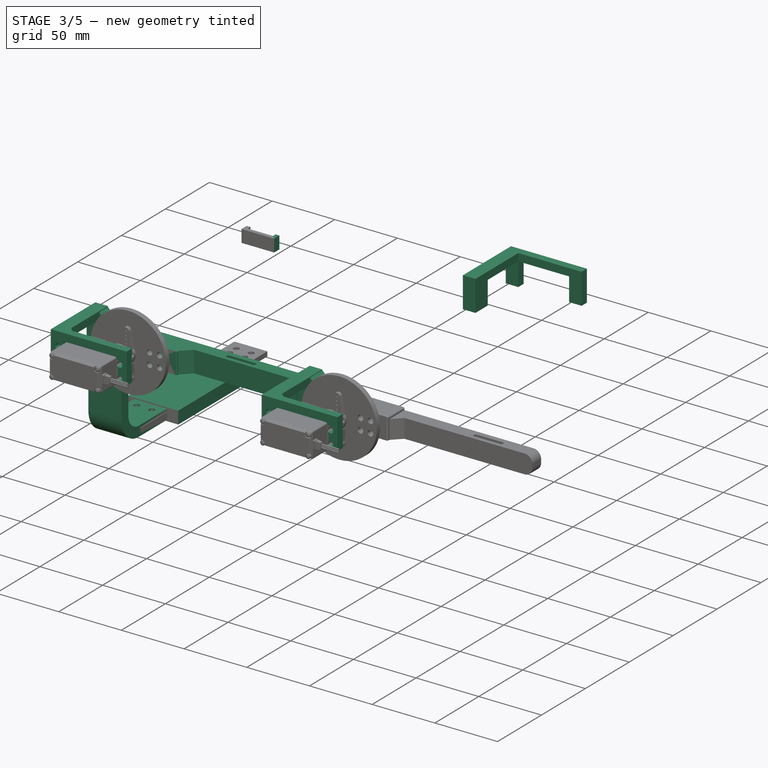
[diagram: stage 3 of 5 — iso view after this stage's code; geometry added in this stage tinted green]
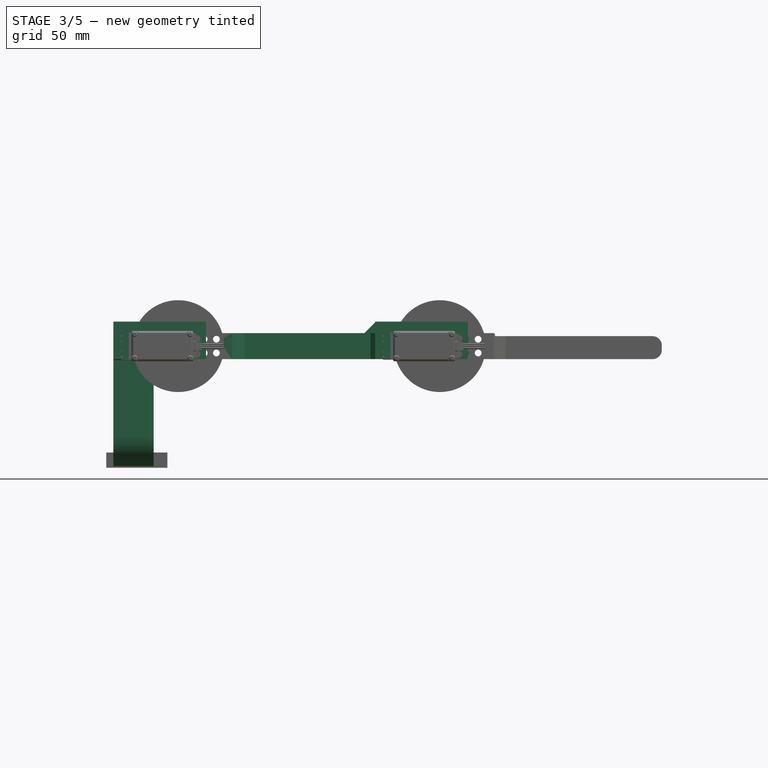
[diagram: stage 3 of 5 — front view after this stage's code; geometry added in this stage tinted green]
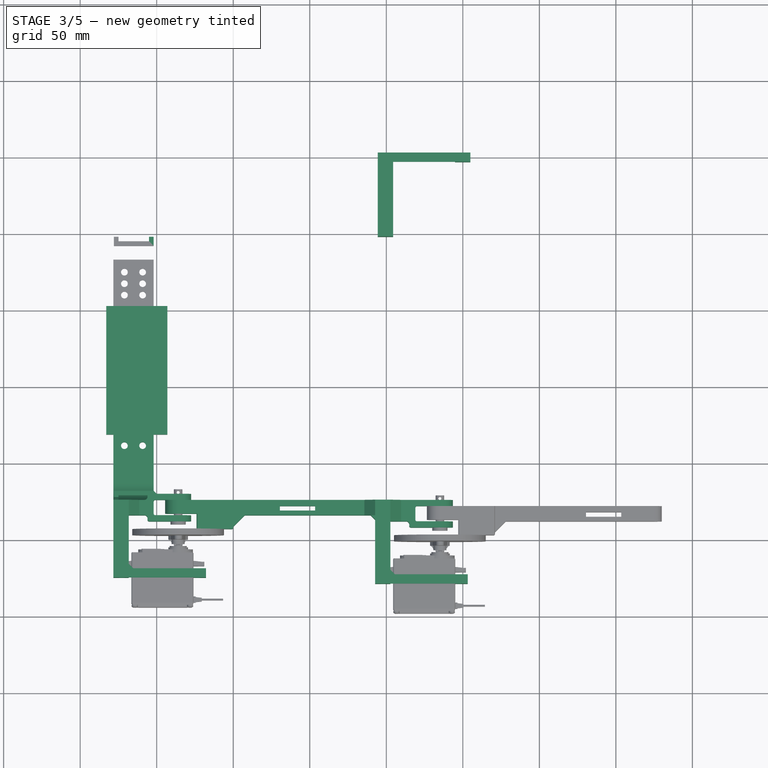
[diagram: stage 3 of 5 — top view after this stage's code; geometry added in this stage tinted green]
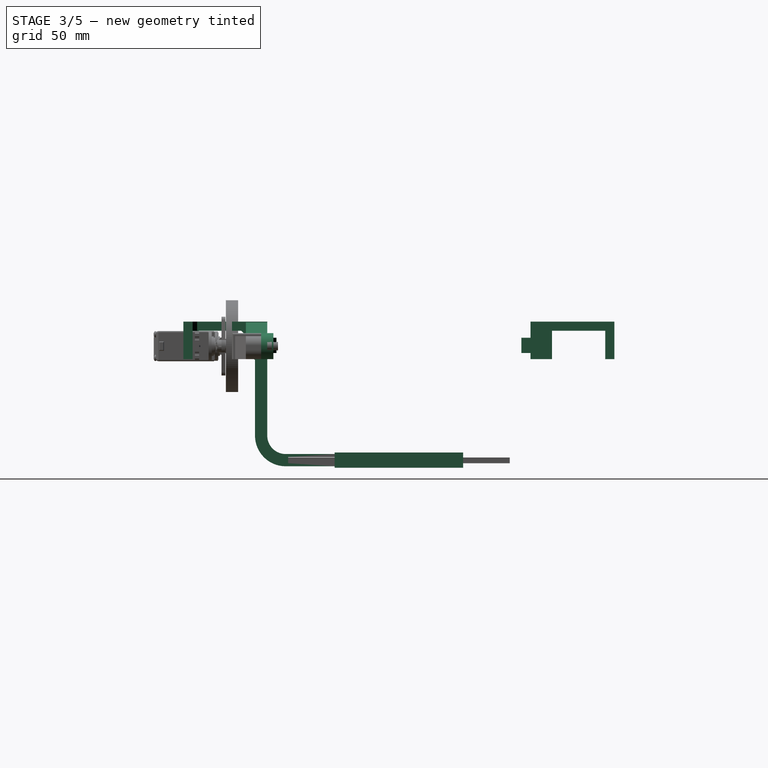
[diagram: stage 3 of 5 — right view after this stage's code; geometry added in this stage tinted green]
FEATURE [Sketcher::SketchObject] Sketch020  label="Boceto_suje_motor003"
  Placement = pos=(0,0,0) rot=(0.57735,0.57735,0.57735;2.0944rad)
  sketch-geometry (8):
    g0: LineSegment StartX=14 StartY=0 StartZ=0 EndX=0 EndY=0 EndZ=0
    g1: LineSegment StartX=0 StartY=0 StartZ=0 EndX=0 EndY=24.5 EndZ=0
    g2: LineSegment StartX=0 StartY=24.5 StartZ=0 EndX=54.8 EndY=24.5 EndZ=0
    g3: LineSegment StartX=54.8 StartY=24.5 StartZ=0 EndX=54.8 EndY=0 EndZ=0
    g4: LineSegment StartX=54.8 StartY=0 StartZ=0 EndX=48.8 EndY=0 EndZ=0
    g5: LineSegment StartX=48.8 StartY=0 StartZ=0 EndX=48.8 EndY=18.5 EndZ=0
    g6: LineSegment StartX=48.8 StartY=18.5 StartZ=0 EndX=14 EndY=18.5 EndZ=0
    g7: LineSegment StartX=14 StartY=18.5 StartZ=0 EndX=14 EndY=0 EndZ=0
  constraints (24):
    c: Horizontal(g0)
    c: Coincident(g0,g1)
    c: Vertical(g1)
    c: Coincident(g1,g2)
    c: Horizontal(g2)
    c: Coincident(g2,g3)
    c: Vertical(g3)
    c: Coincident(g3,g4)
    c: Horizontal(g4)
    c: Coincident(g4,g5)
    c: Vertical(g5)
    c: Coincident(g5,g6)
    c: Horizontal(g6)
    c: Coincident(g6,g7)
    c: Coincident(g7,g0)
    c: Vertical(g7)
    c: DistanceX(g0,g0) = 14
    c: DistanceY(g7,g7) = 18.5
    c: Equal(g7,g5)
    c: DistanceY(g1,g1) = 24.5
    c: Equal(g1,g3)
    c: DistanceX(g6,g6) = 34.8
    c: Coincident(g0,g-1)
    c: DistanceX(g4,g4) = 6
FEATURE [PartDesign::Pad] Pad020  label="Suje_motor003"
  Length = 10
  Length2 = 100
  Placement = pos=(0,0,0) rot=(0.57735,0.57735,0.57735;2.0944rad)
  Sketch = -> Sketch020
  Type = 0
FEATURE [Sketcher::SketchObject] Sketch021  label="Boceto_suje_motor004"
  Placement = pos=(10,54.8,0) rot=(1,0,0;1.5708rad)
  sketch-geometry (6):
    g0: LineSegment StartX=0 StartY=18.5 StartZ=0 EndX=0 EndY=24.5 EndZ=0
    g1: LineSegment StartX=0 StartY=24.5 StartZ=0 EndX=50.5 EndY=24.5 EndZ=0
    g2: LineSegment StartX=50.5 StartY=24.5 StartZ=0 EndX=50.5 EndY=0 EndZ=0
    g3: LineSegment StartX=50.5 StartY=0 StartZ=0 EndX=40.5 EndY=0 EndZ=0
    g4: LineSegment StartX=40.5 StartY=0 StartZ=0 EndX=40.5 EndY=18.5 EndZ=0
    g5: LineSegment StartX=40.5 StartY=18.5 StartZ=0 EndX=0 EndY=18.5 EndZ=0
  constraints (18):
    c: Vertical(g0)
    c: Coincident(g0,g1)
    c: Horizontal(g1)
    c: Coincident(g1,g2)
    c: Vertical(g2)
    c: Coincident(g2,g3)
    c: Horizontal(g3)
    c: Coincident(g3,g4)
    c: Vertical(g4)
    c: Coincident(g4,g5)
    c: Coincident(g5,g0)
    c: Horizontal(g5)
    c: DistanceX(g5,g5) = 40.5
    c: DistanceY(g4,g4) = 18.5
    c: PointOnObject(g3,g-1)
    c: PointOnObject(g0,g-2)
    c: DistanceY(g0,g0) = 6
    c: DistanceX(g3,g3) = 10
FEATURE [PartDesign::Pad] Pad021  label="Suje_motor004"
  Length = 6
  Length2 = 100
  Placement = pos=(10,54.8,0) rot=(1,0,0;1.5708rad)
  Sketch = -> Sketch021
  Type = 0
FEATURE [Part::MultiFuse] Fusion009003025  label="Suje_motor005"
  Placement = pos=(144.425,-3,0) rot=(0,0,1;0rad)
  Shapes = -> [Pad020,Pad021]
FEATURE [Part::Box] Box027  label="Resta_sujetador_cadera001"
  Height = 30
  Length = 12
  Placement = pos=(-29.5,-13,0) rot=(0,0,1;0rad)
  Width = 10
FEATURE [Sketcher::SketchObject] Sketch022  label="Boceto_suje_motor005"
  Placement = pos=(0,0,0) rot=(0.57735,0.57735,0.57735;2.0944rad)
  sketch-geometry (8):
    g0: LineSegment StartX=14 StartY=0 StartZ=0 EndX=0 EndY=0 EndZ=0
    g1: LineSegment StartX=0 StartY=0 StartZ=0 EndX=0 EndY=24.5 EndZ=0
    g2: LineSegment StartX=0 StartY=24.5 StartZ=0 EndX=54.8 EndY=24.5 EndZ=0
    g3: LineSegment StartX=54.8 StartY=24.5 StartZ=0 EndX=54.8 EndY=0 EndZ=0
    g4: LineSegment StartX=54.8 StartY=0 StartZ=0 EndX=48.8 EndY=0 EndZ=0
    g5: LineSegment StartX=48.8 StartY=0 StartZ=0 EndX=48.8 EndY=18.5 EndZ=0
    g6: LineSegment StartX=48.8 StartY=18.5 StartZ=0 EndX=14 EndY=18.5 EndZ=0
    g7: LineSegment StartX=14 StartY=18.5 StartZ=0 EndX=14 EndY=0 EndZ=0
  constraints (24):
    c: Horizontal(g0)
    c: Coincident(g0,g1)
    c: Vertical(g1)
    c: Coincident(g1,g2)
    c: Horizontal(g2)
    c: Coincident(g2,g3)
    c: Vertical(g3)
    c: Coincident(g3,g4)
    c: Horizontal(g4)
    c: Coincident(g4,g5)
    c: Vertical(g5)
    c: Coincident(g5,g6)
    c: Horizontal(g6)
    c: Coincident(g6,g7)
    c: Coincident(g7,g0)
    c: Vertical(g7)
    c: DistanceX(g0,g0) = 14
    c: DistanceY(g7,g7) = 18.5
    c: Equal(g7,g5)
    c: DistanceY(g1,g1) = 24.5
    c: Equal(g1,g3)
    c: DistanceX(g6,g6) = 34.8
    c: Coincident(g0,g-1)
    c: DistanceX(g4,g4) = 6
FEATURE [PartDesign::Pad] Pad022  label="Suje_motor006"
  Length = 10
  Length2 = 100
  Placement = pos=(0,0,0) rot=(0.57735,0.57735,0.57735;2.0944rad)
  Sketch = -> Sketch022
  Type = 0
FEATURE [Sketcher::SketchObject] Sketch023  label="Boceto_suje_motor006"
  Placement = pos=(10,54.8,0) rot=(1,0,0;1.5708rad)
  sketch-geometry (6):
    g0: LineSegment StartX=0 StartY=18.5 StartZ=0 EndX=0 EndY=24.5 EndZ=0
    g1: LineSegment StartX=0 StartY=24.5 StartZ=0 EndX=50.5 EndY=24.5 EndZ=0
    g2: LineSegment StartX=50.5 StartY=24.5 StartZ=0 EndX=50.5 EndY=0 EndZ=0
    g3: LineSegment StartX=50.5 StartY=0 StartZ=0 EndX=40.5 EndY=0 EndZ=0
    g4: LineSegment StartX=40.5 StartY=0 StartZ=0 EndX=40.5 EndY=18.5 EndZ=0
    g5: LineSegment StartX=40.5 StartY=18.5 StartZ=0 EndX=0 EndY=18.5 EndZ=0
  constraints (18):
    c: Vertical(g0)
    c: Coincident(g0,g1)
    c: Horizontal(g1)
    c: Coincident(g1,g2)
    c: Vertical(g2)
    c: Coincident(g2,g3)
    c: Horizontal(g3)
    c: Coincident(g3,g4)
    c: Vertical(g4)
    c: Coincident(g4,g5)
    c: Coincident(g5,g0)
    c: Horizontal(g5)
    c: DistanceX(g5,g5) = 40.5
    c: DistanceY(g4,g4) = 18.5
    c: PointOnObject(g3,g-1)
    c: PointOnObject(g0,g-2)
    c: DistanceY(g0,g0) = 6
    c: DistanceX(g3,g3) = 10
FEATURE [PartDesign::Pad] Pad023  label="Suje_motor007"
  Length = 6
  Length2 = 100
  Placement = pos=(10,54.8,0) rot=(1,0,0;1.5708rad)
  Sketch = -> Sketch023
  Type = 0
FEATURE [Part::Cylinder] Cylinder021  label="Taladro_suje_motor002"
  Angle = 360
  Height = 18
  Placement = pos=(150.075,41,13.5) rot=(-1,0,0;1.5708rad)
  Radius = 2.2
FEATURE [Part::FeaturePython] Array007  label="Taladros_suje_motor002"  # Draft array (typed FeaturePython)
  Angle = 360
  ArrayType = 0
  Axis = (0,0,1)
  Base = -> Cylinder021
  Center = (0,0,0)
  Fuse = false
  IntervalAxis = (0,0,0)
  IntervalX = (49.2,0,0)
  IntervalY = (0,1,0)
  IntervalZ = (0,0,-10.3)
  NumberPolar = 1
  NumberX = 2
  NumberY = 1
  NumberZ = 2
FEATURE [Part::MultiFuse] Fusion009003026  label="Suje_motor008"
  Placement = pos=(144.425,-3,0) rot=(0,0,1;0rad)
  Shapes = -> [Pad022,Pad023]
FEATURE [Part::Cut] Cut018  label="Sujetador_cadera001"
  Base = -> Fusion009003026
  Placement = pos=(-172.725,-4,0) rot=(0,0,1;0rad)
  Tool = -> Array007
FEATURE [Part::Cut] Cut019  label="Sujetador_cadera_full2"
  Base = -> Cut018
  Tool = -> Box027
FEATURE [Part::Mirroring] Part__Mirroring  label="Sujetador_cadera_full Mirror"
  Base = (0,0,0)
  Normal = (0,1,0)
  Placement = pos=(0,-178,0) rot=(0,0,1;0rad)
  Source = -> Cut019
FEATURE [Sketcher::SketchObject] Sketch032
  Placement = pos=(-28,-175,4) rot=(0,0,1;0rad)
  sketch-geometry (8):
    g0: LineSegment StartX=0 StartY=0 StartZ=0 EndX=0 EndY=6 EndZ=0
    g1: LineSegment StartX=0 StartY=6 StartZ=0 EndX=26 EndY=6 EndZ=0
    g2: LineSegment StartX=26 StartY=6 StartZ=0 EndX=26 EndY=0 EndZ=0
    g3: LineSegment StartX=26 StartY=0 StartZ=0 EndX=23 EndY=0 EndZ=0
    g4: LineSegment StartX=23 StartY=0 StartZ=0 EndX=23 EndY=3 EndZ=0
    g5: LineSegment StartX=23 StartY=3 StartZ=0 EndX=3 EndY=3 EndZ=0
    g6: LineSegment StartX=3 StartY=3 StartZ=0 EndX=3 EndY=0 EndZ=0
    g7: LineSegment StartX=3 StartY=0 StartZ=0 EndX=0 EndY=0 EndZ=0
  constraints (24):
    c: Vertical(g0)
    c: Coincident(g0,g1)
    c: Horizontal(g1)
    c: Coincident(g1,g2)
    c: Vertical(g2)
    c: Coincident(g2,g3)
    c: Horizontal(g3)
    c: Coincident(g3,g4)
    c: Vertical(g4)
    c: Coincident(g4,g5)
    c: Horizontal(g5)
    c: Coincident(g5,g6)
    c: Vertical(g6)
    c: Coincident(g6,g7)
    c: Coincident(g7,g0)
    c: Horizontal(g7)
    c: DistanceX(g5,g5) = 20
    c: DistanceX(g7,g7) = 3
    c: Equal(g3,g7)
    c: DistanceY(g6,g6) = 3
    c: Equal(g4,g6)
    c: DistanceY(g0,g0) = 6
    c: Equal(g0,g2)
    c: Coincident(g0,g-1)
FEATURE [PartDesign::Pad] Pad032  label="suje_cadera"
  Length = 10
  Length2 = 100
  Placement = pos=(-28,-175,4) rot=(0,0,1;0rad)
  Sketch = -> Sketch032
  Type = 0
FEATURE [Sketcher::SketchObject] Sketch033
  Placement = pos=(-28,-127,4) rot=(0,0,1;0rad)
  sketch-geometry (8):
    g0: LineSegment StartX=0 StartY=0 StartZ=0 EndX=0 EndY=6 EndZ=0
    g1: LineSegment StartX=0 StartY=6 StartZ=0 EndX=26 EndY=6 EndZ=0
    g2: LineSegment StartX=26 StartY=6 StartZ=0 EndX=26 EndY=0 EndZ=0
    g3: LineSegment StartX=26 StartY=0 StartZ=0 EndX=23 EndY=0 EndZ=0
    g4: LineSegment StartX=23 StartY=0 StartZ=0 EndX=23 EndY=3 EndZ=0
    g5: LineSegment StartX=23 StartY=3 StartZ=0 EndX=3 EndY=3 EndZ=0
    g6: LineSegment StartX=3 StartY=3 StartZ=0 EndX=3 EndY=0 EndZ=0
    g7: LineSegment StartX=3 StartY=0 StartZ=0 EndX=0 EndY=0 EndZ=0
  constraints (24):
    c: Vertical(g0)
    c: Coincident(g0,g1)
    c: Horizontal(g1)
    c: Coincident(g1,g2)
    c: Vertical(g2)
    c: Coincident(g2,g3)
    c: Horizontal(g3)
    c: Coincident(g3,g4)
    c: Vertical(g4)
    c: Coincident(g4,g5)
    c: Horizontal(g5)
    c: Coincident(g5,g6)
    c: Vertical(g6)
    c: Coincident(g6,g7)
    c: Coincident(g7,g0)
    c: Horizontal(g7)
    c: DistanceX(g5,g5) = 20
    c: DistanceX(g7,g7) = 3
    c: Equal(g3,g7)
    c: DistanceY(g6,g6) = 3
    c: Equal(g4,g6)
    c: DistanceY(g0,g0) = 6
    c: Equal(g0,g2)
    c: Coincident(g0,g-1)
FEATURE [PartDesign::Pad] Pad033  label="suje_cadera1"
  Length = 10
  Length2 = 100
  Placement = pos=(-28,-127,4) rot=(0,0,1;0rad)
  Sketch = -> Sketch033
  Type = 0
FEATURE [Part::Mirroring] Part__Mirroring009  label="suje_cadera1_Mirror"
  Base = (0,0,0)
  Normal = (0,1,0)
  Placement = pos=(0,-130,0) rot=(0,0,1;0rad)
  Source = -> Pad033
FEATURE [Part::MultiFuse] Fusion009003040  label="Sujetadores_cadera"
  Shapes = -> [Pad032,Part__Mirroring009]
FEATURE [Part::Box] Box036  label="Corte_cadera"
  Height = 10
  Length = 40
  Placement = pos=(-33,-131,-71) rot=(0,0,1;0rad)
  Width = 84
FEATURE [Part::Box] Box042  label="Base_femur001"
  Height = 17
  Length = 167
  Placement = pos=(0,-3,0) rot=(0,0,1;0rad)
  Width = 10
FEATURE [Part::Box] Box043  label="Cubo_gancho003"
  Height = 10
  Length = 20
  Placement = pos=(-16,0,4) rot=(0,0,1;0rad)
  Width = 17
FEATURE [Sketcher::SketchObject] Sketch049  label="Boceto_gancho006"
  sketch-geometry (5):
    g0: LineSegment StartX=0 StartY=17 StartZ=0 EndX=20 EndY=17 EndZ=0
    g1: LineSegment StartX=20 StartY=0 StartZ=0 EndX=0 EndY=0 EndZ=0
    g2: LineSegment StartX=0 StartY=0 StartZ=0 EndX=0 EndY=17 EndZ=0
    g3: ArcOfCircle CenterX=20 CenterY=8.5 CenterZ=0 NormalX=0 NormalY=0 NormalZ=1 Radius=8.5 StartAngle=4.71239 EndAngle=7.85398
    g4: Circle CenterX=20 CenterY=8.5 CenterZ=0 NormalX=0 NormalY=0 NormalZ=1 Radius=3
  constraints (14):
    c: Coincident(g1,g2)
    c: Coincident(g2,g0)
    c: Horizontal(g0)
    c: Horizontal(g1)
    c: Vertical(g2)
    c: DistanceY(g2,g2) = 17
    c: DistanceX(g0,g0) = 20
    c: Equal(g0,g1)
    c: Coincident(g3,g0)
    c: Coincident(g3,g1)
    c: Coincident(g-1,g1)
    c: Coincident(g4,g3)
    c: Radius(g3) = 8.5
    c: Radius(g4) = 3
FEATURE [PartDesign::Pad] Pad050  label="Ciculo_gancho007"
  Length = 4
  Length2 = 100
  Sketch = -> Sketch049
  Type = 0
FEATURE [Sketcher::SketchObject] Sketch050  label="Boceto_gancho007"
  Placement = pos=(0,0,14) rot=(0,0,1;0rad)
  sketch-geometry (5):
    g0: LineSegment StartX=0 StartY=17 StartZ=0 EndX=20 EndY=17 EndZ=0
    g1: LineSegment StartX=20 StartY=0 StartZ=0 EndX=0 EndY=0 EndZ=0
    g2: LineSegment StartX=0 StartY=0 StartZ=0 EndX=0 EndY=17 EndZ=0
    g3: ArcOfCircle CenterX=20 CenterY=8.5 CenterZ=0 NormalX=0 NormalY=0 NormalZ=1 Radius=8.5 StartAngle=4.71239 EndAngle=7.85398
    g4: Circle CenterX=20 CenterY=8.5 CenterZ=0 NormalX=0 NormalY=0 NormalZ=1 Radius=3
  constraints (14):
    c: Coincident(g1,g2)
    c: Coincident(g2,g0)
    c: Horizontal(g0)
    c: Horizontal(g1)
    c: Vertical(g2)
    c: DistanceY(g2,g2) = 17
    c: DistanceX(g0,g0) = 20
    c: Equal(g0,g1)
    c: Coincident(g3,g0)
    c: Coincident(g3,g1)
    c: Coincident(g-1,g1)
    c: Coincident(g4,g3)
    c: Radius(g4) = 3
    c: Radius(g3) = 8.5
FEATURE [PartDesign::Pad] Pad051  label="Ciculo_gancho008"
  Length = 4
  Length2 = 100
  Placement = pos=(0,0,14) rot=(0,0,1;0rad)
  Sketch = -> Sketch050
  Type = 0
FEATURE [Part::MultiFuse] Fusion009003048  label="Gancho003"
  Shapes = -> [Box043,Pad050,Pad051]
FEATURE [Part::Fillet] Fillet017  label="Gancho_redondeo003"
  Base = -> Fusion009003048
  Edges = 4 edges r=1: [Edge10,Edge27,Edge28,Edge34]
  Placement = pos=(16,15,0) rot=(1,0,0;1.5708rad)
FEATURE [Part::Fillet] Fillet018  label="Gancho_femur001"
  Base = -> Fillet017
  Edges = 4 edges: [Edge36 r=2,Edge37 r=1,Edge41 r=1,Edge47 r=2]
  Placement = pos=(149,0,0) rot=(0,0,1;0rad)
FEATURE [Part::MultiFuse] Fusion009003049  label="Femur_gancho001"
  Shapes = -> [Box042,Fillet018]
FEATURE [Sketcher::SketchObject] Sketch051  label="Boceto_suje_motor007"
  Placement = pos=(0,0,0) rot=(0.57735,0.57735,0.57735;2.0944rad)
  sketch-geometry (8):
    g0: LineSegment StartX=14 StartY=0 StartZ=0 EndX=0 EndY=0 EndZ=0
    g1: LineSegment StartX=0 StartY=0 StartZ=0 EndX=0 EndY=24.5 EndZ=0
    g2: LineSegment StartX=0 StartY=24.5 StartZ=0 EndX=54.8 EndY=24.5 EndZ=0
    g3: LineSegment StartX=54.8 StartY=24.5 StartZ=0 EndX=54.8 EndY=0 EndZ=0
    g4: LineSegment StartX=54.8 StartY=0 StartZ=0 EndX=48.8 EndY=0 EndZ=0
    g5: LineSegment StartX=48.8 StartY=0 StartZ=0 EndX=48.8 EndY=18.5 EndZ=0
    g6: LineSegment StartX=48.8 StartY=18.5 StartZ=0 EndX=14 EndY=18.5 EndZ=0
    g7: LineSegment StartX=14 StartY=18.5 StartZ=0 EndX=14 EndY=0 EndZ=0
  constraints (24):
    c: Horizontal(g0)
    c: Coincident(g0,g1)
    c: Vertical(g1)
    c: Coincident(g1,g2)
    c: Horizontal(g2)
    c: Coincident(g2,g3)
    c: Vertical(g3)
    c: Coincident(g3,g4)
    c: Horizontal(g4)
    c: Coincident(g4,g5)
    c: Vertical(g5)
    c: Coincident(g5,g6)
    c: Horizontal(g6)
    c: Coincident(g6,g7)
    c: Coincident(g7,g0)
    c: Vertical(g7)
    c: DistanceX(g0,g0) = 14
    c: DistanceY(g7,g7) = 18.5
    c: Equal(g7,g5)
    c: DistanceY(g1,g1) = 24.5
    c: Equal(g1,g3)
    c: DistanceX(g6,g6) = 34.8
    c: Coincident(g0,g-1)
    c: DistanceX(g4,g4) = 6
FEATURE [PartDesign::Pad] Pad052  label="Suje_motor009"
  Length = 10
  Length2 = 100
  Placement = pos=(0,0,0) rot=(0.57735,0.57735,0.57735;2.0944rad)
  Sketch = -> Sketch051
  Type = 0
FEATURE [Sketcher::SketchObject] Sketch052  label="Boceto_suje_motor008"
  Placement = pos=(10,54.8,0) rot=(1,0,0;1.5708rad)
  sketch-geometry (6):
    g0: LineSegment StartX=0 StartY=18.5 StartZ=0 EndX=0 EndY=24.5 EndZ=0
    g1: LineSegment StartX=0 StartY=24.5 StartZ=0 EndX=50.5 EndY=24.5 EndZ=0
    g2: LineSegment StartX=50.5 StartY=24.5 StartZ=0 EndX=50.5 EndY=0 EndZ=0
    g3: LineSegment StartX=50.5 StartY=0 StartZ=0 EndX=40.5 EndY=0 EndZ=0
    g4: LineSegment StartX=40.5 StartY=0 StartZ=0 EndX=40.5 EndY=18.5 EndZ=0
    g5: LineSegment StartX=40.5 StartY=18.5 StartZ=0 EndX=0 EndY=18.5 EndZ=0
  constraints (18):
    c: Vertical(g0)
    c: Coincident(g0,g1)
    c: Horizontal(g1)
    c: Coincident(g1,g2)
    c: Vertical(g2)
    c: Coincident(g2,g3)
    c: Horizontal(g3)
    c: Coincident(g3,g4)
    c: Vertical(g4)
    c: Coincident(g4,g5)
    c: Coincident(g5,g0)
    c: Horizontal(g5)
    c: DistanceX(g5,g5) = 40.5
    c: DistanceY(g4,g4) = 18.5
    c: PointOnObject(g3,g-1)
    c: PointOnObject(g0,g-2)
    c: DistanceY(g0,g0) = 6
    c: DistanceX(g3,g3) = 10
FEATURE [PartDesign::Pad] Pad053  label="Suje_motor010"
  Length = 6
  Length2 = 100
  Placement = pos=(10,54.8,0) rot=(1,0,0;1.5708rad)
  Sketch = -> Sketch052
  Type = 0
FEATURE [Part::Cylinder] Cylinder037  label="Taladro_suje_motor003"
  Angle = 360
  Height = 18
  Placement = pos=(150.075,41,13.5) rot=(-1,0,0;1.5708rad)
  Radius = 2.2
FEATURE [Part::FeaturePython] Array011  label="Taladros_suje_motor003"  # Draft array (typed FeaturePython)
  Angle = 360
  ArrayType = 0
  Axis = (0,0,1)
  Base = -> Cylinder037
  Center = (0,0,0)
  Fuse = false
  IntervalAxis = (0,0,0)
  IntervalX = (49.2,0,0)
  IntervalY = (0,1,0)
  IntervalZ = (0,0,-10.3)
  NumberPolar = 1
  NumberX = 2
  NumberY = 1
  NumberZ = 2
FEATURE [Part::MultiFuse] Fusion009003050  label="Suje_motor011"
  Placement = pos=(144.425,-3,0) rot=(0,0,1;0rad)
  Shapes = -> [Pad052,Pad053]
FEATURE [Part::Cut] Cut037  label="Sujetador_motor001"
  Base = -> Fusion009003050
  Placement = pos=(-1.725,0,0) rot=(0,0,1;0rad)
  Tool = -> Array011
FEATURE [Part::Box] Box044  label="Agarre002"
  Height = 20
  Length = 23
  Placement = pos=(80.5,1,0) rot=(0,0,1;0rad)
  Width = 3
FEATURE [Part::Cut] Cut038  label="Femur_agarre001"
  Base = -> Fusion009003049
  Tool = -> Box044
FEATURE [Part::MultiFuse] Fusion009003051  label="Femur001"
  Shapes = -> [Cut037,Cut038]
FEATURE [Part::Chamfer] Chamfer007  label="Femur_refuerzo_gancho001"
  Base = -> Fusion009003051
  Edges = 1 edges r=3: [Edge31]
FEATURE [Part::Box] Box047  label="Suj_traccion002"
  Height = 17
  Length = 24
  Placement = pos=(26,6,0) rot=(0,0,1;0rad)
  Width = 10
FEATURE [Sketcher::SketchObject] Sketch056  label="Boceto_tibia_gancho002"
  Placement = pos=(50,6,0) rot=(1,0,0;1.5708rad)
  sketch-geometry (5):
    g0: LineSegment StartX=0 StartY=17 StartZ=0 EndX=-36 EndY=17 EndZ=0
    g1: LineSegment StartX=-36 StartY=1.3e-11 StartZ=0 EndX=0 EndY=1.3e-11 EndZ=0
    g2: LineSegment StartX=0 StartY=1.3e-11 StartZ=0 EndX=0 EndY=17 EndZ=0
    g3: ArcOfCircle CenterX=-36 CenterY=8.5 CenterZ=0 NormalX=0 NormalY=0 NormalZ=1 Radius=8.5 StartAngle=1.57079 EndAngle=4.71239
    g4: Circle CenterX=-36 CenterY=8.5 CenterZ=0 NormalX=0 NormalY=0 NormalZ=1 Radius=3
  constraints (14):
    c: Coincident(g1,g2)
    c: Coincident(g2,g0)
    c: Horizontal(g0)
    c: Horizontal(g1)
    c: Vertical(g2)
    c: Coincident(g3,g0)
    c: DistanceX(g0,g0) = 36
    c: DistanceY(g2,g2) = 17
    c: Radius(g3) = 8.5
    c: Equal(g0,g1)
    c: Coincident(g3,g1)
    c: Coincident(g1,g-1)
    c: Coincident(g4,g3)
    c: Radius(g4) = 3
FEATURE [PartDesign::Pad] Pad057  label="Circulo_tibia_gancho002"
  Length = 9
  Length2 = 100
  Placement = pos=(50,6,0) rot=(1,0,0;1.5708rad)
  Sketch = -> Sketch056
  Type = 0
FEATURE [Part::Cylinder] Cylinder038  label="Taladro_suje_traccion004"
  Angle = 360
  Height = 26
  Placement = pos=(202,0,4) rot=(-1,0,0;1.5708rad)
  Radius = 2.2
FEATURE [Part::FeaturePython] Array012  label="Taladros_suje_traccion004"  # Draft array (typed FeaturePython)
  Angle = 360
  ArrayType = 0
  Axis = (0,0,1)
  Base = -> Cylinder038
  Center = (0,0,0)
  Fuse = false
  IntervalAxis = (0,0,0)
  IntervalX = (8,0,0)
  IntervalY = (0,1,0)
  IntervalZ = (0,0,9)
  NumberPolar = 1
  NumberX = 2
  NumberY = 1
  NumberZ = 2
  Placement = pos=(-171,-5,0) rot=(0,0,1;0rad)
FEATURE [Part::Box] Box048  label="resta_redondeo_punta001"
  Height = 20
  Length = 35
  Placement = pos=(-2,-5,0) rot=(0,0,1;0rad)
  Width = 15
FEATURE [Part::Cut] Cut039  label="femur_resta_punta001"
  Base = -> Chamfer007
  Tool = -> Box048
FEATURE [Part::MultiFuse] Fusion009003053  label="femur_con_ext_redondeo001"
  Shapes = -> [Cut039,Pad057]
FEATURE [Part::MultiFuse] Fusion009003054  label="Femur_con_sujecion_motor003"
  Shapes = -> [Fusion009003053,Box047]
FEATURE [Part::Cut] Cut040  label="Femur_completo_sin_pulir001"
  Base = -> Fusion009003054
  Tool = -> Array012
FEATURE [Part::Fillet] Fillet023  label="Femur_redondeo001"
  Base = -> Cut040
  Edges = 3 edges r=1: [Edge2,Edge28,Edge36]
FEATURE [Sketcher::SketchObject] Sketch065  label="Boceto_refuerzo006"
  Placement = pos=(152.7,11,17) rot=(1,0,0;1.5708rad)
  sketch-geometry (3):
    g0: LineSegment StartX=0 StartY=0 StartZ=0 EndX=0 EndY=7 EndZ=0
    g1: LineSegment StartX=0 StartY=7 StartZ=0 EndX=7 EndY=0 EndZ=0
    g2: LineSegment StartX=7 StartY=0 StartZ=0 EndX=0 EndY=0 EndZ=0
  constraints (8):
    c: Vertical(g0)
    c: Coincident(g0,g1)
    c: Coincident(g1,g2)
    c: Coincident(g2,g0)
    c: Horizontal(g2)
    c: Coincident(g0,g-1)
    c: DistanceY(g0,g0) = 7
    c: DistanceX(g2,g2) = 7
FEATURE [Sketcher::SketchObject] Sketch066  label="Boceto_refuerzo007"
  Placement = pos=(142.7,-3,17) rot=(0,0.707107,0.707107;3.14159rad)
  sketch-geometry (3):
    g0: LineSegment StartX=0 StartY=0 StartZ=0 EndX=0 EndY=7 EndZ=0
    g1: LineSegment StartX=0 StartY=7 StartZ=0 EndX=7 EndY=0 EndZ=0
    g2: LineSegment StartX=7 StartY=0 StartZ=0 EndX=0 EndY=0 EndZ=0
  constraints (8):
    c: Vertical(g0)
    c: Coincident(g0,g1)
    c: Coincident(g1,g2)
    c: Coincident(g2,g0)
    c: Horizontal(g2)
    c: Coincident(g0,g-1)
    c: DistanceY(g0,g0) = 7
    c: DistanceX(g2,g2) = 7
FEATURE [PartDesign::Pad] Pad066  label="Refuerzo008"
  Length = 10
  Length2 = 100
  Placement = pos=(142.7,-3,17) rot=(0,0.707107,0.707107;3.14159rad)
  Sketch = -> Sketch066
  Type = 0
FEATURE [Sketcher::SketchObject] Sketch067  label="Boceto_refuerzo008"
  Placement = pos=(142.7,11,18.5) rot=(0,1,0;1.5708rad)
  sketch-geometry (3):
    g0: LineSegment StartX=0 StartY=0 StartZ=0 EndX=0 EndY=3 EndZ=0
    g1: LineSegment StartX=0 StartY=3 StartZ=0 EndX=3 EndY=0 EndZ=0
    g2: LineSegment StartX=3 StartY=0 StartZ=0 EndX=0 EndY=0 EndZ=0
  constraints (8):
    c: Vertical(g0)
    c: Coincident(g0,g1)
    c: Coincident(g1,g2)
    c: Coincident(g2,g0)
    c: Horizontal(g2)
    c: Coincident(g0,g-1)
    c: DistanceY(g0,g0) = 3
    c: DistanceX(g2,g2) = 3
FEATURE [PartDesign::Pad] Pad067  label="Refuerzo009"
  Length = 10
  Length2 = 100
  Placement = pos=(142.7,11,18.5) rot=(0,1,0;1.5708rad)
  Sketch = -> Sketch067
  Type = 0
FEATURE [Sketcher::SketchObject] Sketch068  label="Boceto_refuerzo009"
  Placement = pos=(152.7,45.8,18.5) rot=(0,0,-1;1.5708rad)
  sketch-geometry (3):
    g0: LineSegment StartX=0 StartY=0 StartZ=0 EndX=0 EndY=3 EndZ=0
    g1: LineSegment StartX=0 StartY=3 StartZ=0 EndX=3 EndY=0 EndZ=0
    g2: LineSegment StartX=3 StartY=0 StartZ=0 EndX=0 EndY=0 EndZ=0
  constraints (8):
    c: Vertical(g0)
    c: Coincident(g0,g1)
    c: Coincident(g1,g2)
    c: Coincident(g2,g0)
    c: Horizontal(g2)
    c: Coincident(g0,g-1)
    c: DistanceY(g0,g0) = 3
    c: DistanceX(g2,g2) = 3
FEATURE [PartDesign::Pad] Pad068  label="Refuerzo010"
  Length = 6
  Length2 = 100
  Placement = pos=(152.7,45.8,18.5) rot=(0,0,-1;1.5708rad)
  Sketch = -> Sketch068
  Type = 0
FEATURE [PartDesign::Pad] Pad072  label="Refuerzo014"
  Length = 14
  Length2 = 100
  Placement = pos=(152.7,11,17) rot=(1,0,0;1.5708rad)
  Sketch = -> Sketch065
  Type = 0
FEATURE [Part::Chamfer] Chamfer009  label="Femur_refuerzo001"
  Base = -> Fillet023
  Edges = 1 edges r=7.5: [Edge67]
FEATURE [Part::MultiFuse] Fusion009003066  label="Femur_izquierdo_full001"
  Shapes = -> [Pad066,Pad067,Pad068,Pad072,Chamfer009]
FEATURE [Part::FeaturePython] Array015  label="Taladros_cadera001"  # Draft array (typed FeaturePython)
  Angle = 360
  ArrayType = 0
  Axis = (0,0,1)
  Base = -> Cylinder041
  Center = (0,0,0)
  Fuse = false
  IntervalAxis = (0,0,0)
  IntervalX = (-11.9,0,0)
  IntervalY = (0,1,0)
  IntervalZ = (0,0,0)
  NumberPolar = 1
  NumberX = 2
  NumberY = 1
  NumberZ = 1
FEATURE [Part::Cut] Cut048  label="Cadera_izquierda_full001"
  Base = -> Cut047
  Tool = -> Array015
FEATURE [Part::Mirroring] Part__Mirroring012  label="Femur_derecha_full"
  Base = (0,0,0)
  Normal = (0,1,0)
  Placement = pos=(0,-178,0) rot=(0,0,1;0rad)
  Source = -> Fusion009003066
FEATURE [Part::Mirroring] Part__Mirroring013  label="Cadera_derecha_full"
  Base = (0,0,0)
  Normal = (0,1,0)
  Placement = pos=(0,-178,0) rot=(0,0,1;0rad)
  Source = -> Cut048
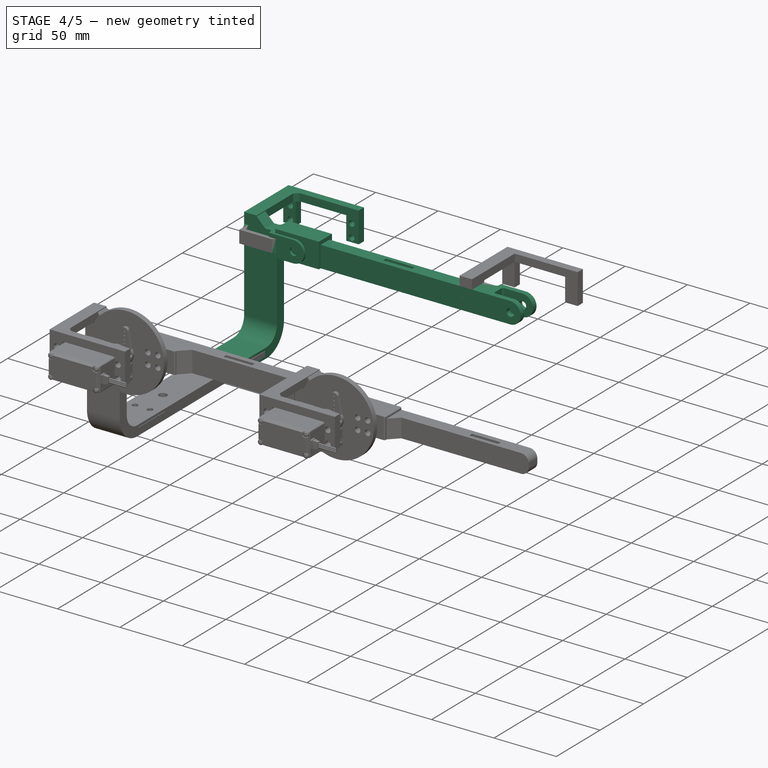
[diagram: stage 4 of 5 — iso view after this stage's code; geometry added in this stage tinted green]
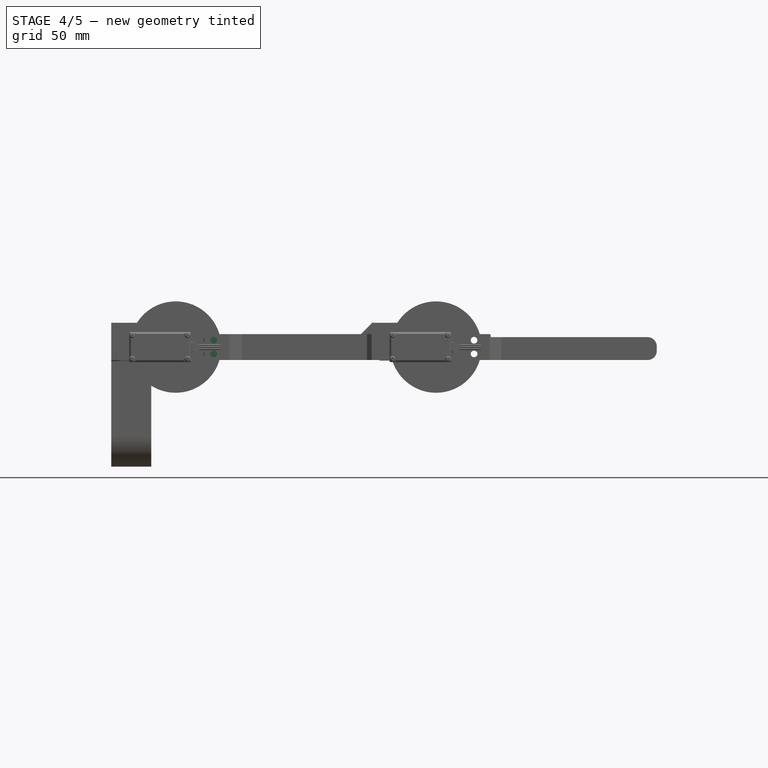
[diagram: stage 4 of 5 — front view after this stage's code; geometry added in this stage tinted green]
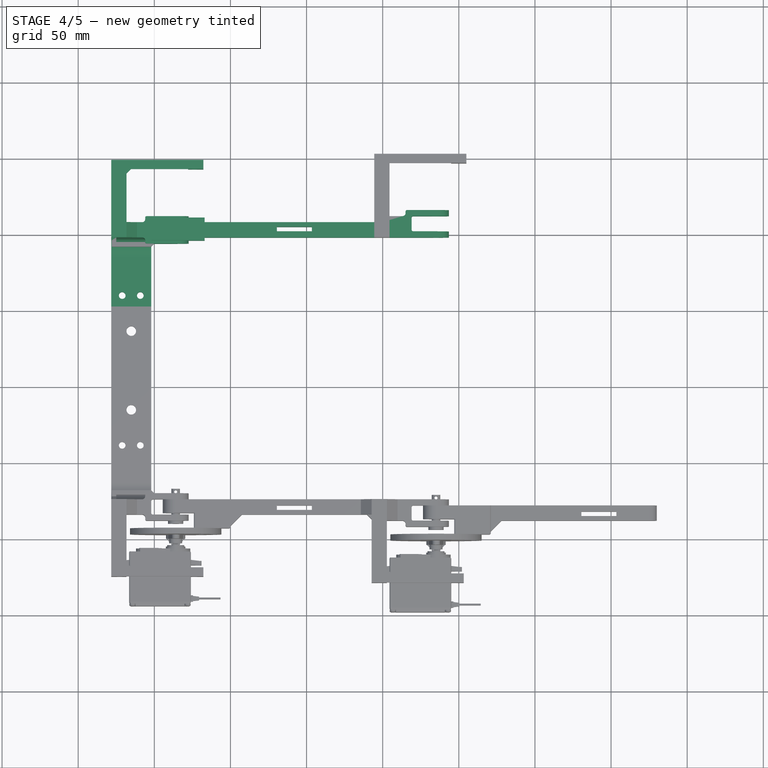
[diagram: stage 4 of 5 — top view after this stage's code; geometry added in this stage tinted green]
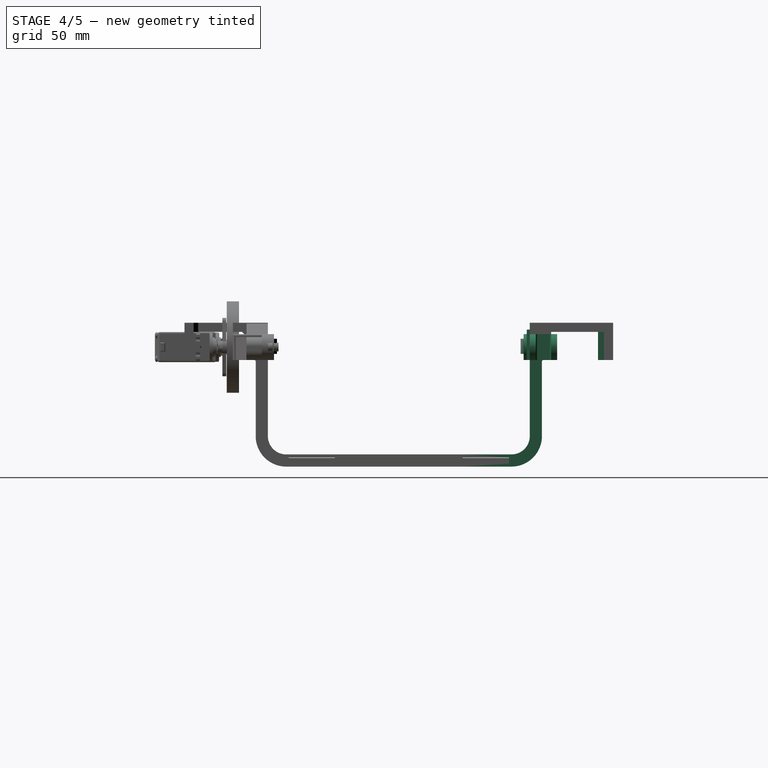
[diagram: stage 4 of 5 — right view after this stage's code; geometry added in this stage tinted green]
FEATURE [Part::Box] Box  label="Base_femur"
  Height = 17
  Length = 167
  Placement = pos=(0,-3,0) rot=(0,0,1;0rad)
  Width = 10
FEATURE [Part::Box] Box010  label="Cubo_gancho"
  Height = 10
  Length = 20
  Placement = pos=(-16,0,4) rot=(0,0,1;0rad)
  Width = 17
FEATURE [Sketcher::SketchObject] Sketch  label="Boceto_gancho"
  sketch-geometry (5):
    g0: LineSegment StartX=0 StartY=17 StartZ=0 EndX=20 EndY=17 EndZ=0
    g1: LineSegment StartX=20 StartY=0 StartZ=0 EndX=0 EndY=0 EndZ=0
    g2: LineSegment StartX=0 StartY=0 StartZ=0 EndX=0 EndY=17 EndZ=0
    g3: ArcOfCircle CenterX=20 CenterY=8.5 CenterZ=0 NormalX=0 NormalY=0 NormalZ=1 Radius=8.5 StartAngle=4.71239 EndAngle=7.85398
    g4: Circle CenterX=20 CenterY=8.5 CenterZ=0 NormalX=0 NormalY=0 NormalZ=1 Radius=3
  constraints (14):
    c: Coincident(g1,g2)
    c: Coincident(g2,g0)
    c: Horizontal(g0)
    c: Horizontal(g1)
    c: Vertical(g2)
    c: DistanceY(g2,g2) = 17
    c: DistanceX(g0,g0) = 20
    c: Equal(g0,g1)
    c: Coincident(g3,g0)
    c: Coincident(g3,g1)
    c: Coincident(g-1,g1)
    c: Coincident(g4,g3)
    c: Radius(g3) = 8.5
    c: Radius(g4) = 3
FEATURE [PartDesign::Pad] Pad  label="Ciculo_gancho1"
  Length = 4
  Length2 = 100
  Sketch = -> Sketch
  Type = 0
FEATURE [Sketcher::SketchObject] Sketch001  label="Boceto_gancho1"
  Placement = pos=(0,0,14) rot=(0,0,1;0rad)
  sketch-geometry (5):
    g0: LineSegment StartX=0 StartY=17 StartZ=0 EndX=20 EndY=17 EndZ=0
    g1: LineSegment StartX=20 StartY=0 StartZ=0 EndX=0 EndY=0 EndZ=0
    g2: LineSegment StartX=0 StartY=0 StartZ=0 EndX=0 EndY=17 EndZ=0
    g3: ArcOfCircle CenterX=20 CenterY=8.5 CenterZ=0 NormalX=0 NormalY=0 NormalZ=1 Radius=8.5 StartAngle=4.71239 EndAngle=7.85398
    g4: Circle CenterX=20 CenterY=8.5 CenterZ=0 NormalX=0 NormalY=0 NormalZ=1 Radius=3
  constraints (14):
    c: Coincident(g1,g2)
    c: Coincident(g2,g0)
    c: Horizontal(g0)
    c: Horizontal(g1)
    c: Vertical(g2)
    c: DistanceY(g2,g2) = 17
    c: DistanceX(g0,g0) = 20
    c: Equal(g0,g1)
    c: Coincident(g3,g0)
    c: Coincident(g3,g1)
    c: Coincident(g-1,g1)
    c: Coincident(g4,g3)
    c: Radius(g4) = 3
    c: Radius(g3) = 8.5
FEATURE [PartDesign::Pad] Pad001  label="Ciculo_gancho2"
  Length = 4
  Length2 = 100
  Placement = pos=(0,0,14) rot=(0,0,1;0rad)
  Sketch = -> Sketch001
  Type = 0
FEATURE [Part::MultiFuse] Fusion006  label="Gancho"
  Shapes = -> [Box010,Pad,Pad001]
FEATURE [Part::Fillet] Fillet001  label="Gancho_redondeo"
  Base = -> Fusion006
  Edges = 4 edges r=1: [Edge10,Edge27,Edge28,Edge34]
  Placement = pos=(16,15,0) rot=(1,0,0;1.5708rad)
FEATURE [Part::Fillet] Fillet002  label="Gancho_femur"
  Base = -> Fillet001
  Edges = 4 edges: [Edge36 r=2,Edge37 r=1,Edge41 r=1,Edge47 r=2]
  Placement = pos=(149,0,0) rot=(0,0,1;0rad)
FEATURE [Part::MultiFuse] Fusion007  label="Femur_gancho"
  Shapes = -> [Box,Fillet002]
FEATURE [Sketcher::SketchObject] Sketch007  label="Boceto_suje_motor1"
  Placement = pos=(0,0,0) rot=(0.57735,0.57735,0.57735;2.0944rad)
  sketch-geometry (8):
    g0: LineSegment StartX=14 StartY=0 StartZ=0 EndX=0 EndY=0 EndZ=0
    g1: LineSegment StartX=0 StartY=0 StartZ=0 EndX=0 EndY=24.5 EndZ=0
    g2: LineSegment StartX=0 StartY=24.5 StartZ=0 EndX=54.8 EndY=24.5 EndZ=0
    g3: LineSegment StartX=54.8 StartY=24.5 StartZ=0 EndX=54.8 EndY=0 EndZ=0
    g4: LineSegment StartX=54.8 StartY=0 StartZ=0 EndX=48.8 EndY=0 EndZ=0
    g5: LineSegment StartX=48.8 StartY=0 StartZ=0 EndX=48.8 EndY=18.5 EndZ=0
    g6: LineSegment StartX=48.8 StartY=18.5 StartZ=0 EndX=14 EndY=18.5 EndZ=0
    g7: LineSegment StartX=14 StartY=18.5 StartZ=0 EndX=14 EndY=0 EndZ=0
  constraints (24):
    c: Horizontal(g0)
    c: Coincident(g0,g1)
    c: Vertical(g1)
    c: Coincident(g1,g2)
    c: Horizontal(g2)
    c: Coincident(g2,g3)
    c: Vertical(g3)
    c: Coincident(g3,g4)
    c: Horizontal(g4)
    c: Coincident(g4,g5)
    c: Vertical(g5)
    c: Coincident(g5,g6)
    c: Horizontal(g6)
    c: Coincident(g6,g7)
    c: Coincident(g7,g0)
    c: Vertical(g7)
    c: DistanceX(g0,g0) = 14
    c: DistanceY(g7,g7) = 18.5
    c: Equal(g7,g5)
    c: DistanceY(g1,g1) = 24.5
    c: Equal(g1,g3)
    c: DistanceX(g6,g6) = 34.8
    c: Coincident(g0,g-1)
    c: DistanceX(g4,g4) = 6
FEATURE [PartDesign::Pad] Pad007  label="Suje_motor1"
  Length = 10
  Length2 = 100
  Placement = pos=(0,0,0) rot=(0.57735,0.57735,0.57735;2.0944rad)
  Sketch = -> Sketch007
  Type = 0
FEATURE [Sketcher::SketchObject] Sketch008  label="Boceto_suje_motor2"
  Placement = pos=(10,54.8,0) rot=(1,0,0;1.5708rad)
  sketch-geometry (6):
    g0: LineSegment StartX=0 StartY=18.5 StartZ=0 EndX=0 EndY=24.5 EndZ=0
    g1: LineSegment StartX=0 StartY=24.5 StartZ=0 EndX=50.5 EndY=24.5 EndZ=0
    g2: LineSegment StartX=50.5 StartY=24.5 StartZ=0 EndX=50.5 EndY=0 EndZ=0
    g3: LineSegment StartX=50.5 StartY=0 StartZ=0 EndX=40.5 EndY=0 EndZ=0
    g4: LineSegment StartX=40.5 StartY=0 StartZ=0 EndX=40.5 EndY=18.5 EndZ=0
    g5: LineSegment StartX=40.5 StartY=18.5 StartZ=0 EndX=0 EndY=18.5 EndZ=0
  constraints (18):
    c: Vertical(g0)
    c: Coincident(g0,g1)
    c: Horizontal(g1)
    c: Coincident(g1,g2)
    c: Vertical(g2)
    c: Coincident(g2,g3)
    c: Horizontal(g3)
    c: Coincident(g3,g4)
    c: Vertical(g4)
    c: Coincident(g4,g5)
    c: Coincident(g5,g0)
    c: Horizontal(g5)
    c: DistanceX(g5,g5) = 40.5
    c: DistanceY(g4,g4) = 18.5
    c: PointOnObject(g3,g-1)
    c: PointOnObject(g0,g-2)
    c: DistanceY(g0,g0) = 6
    c: DistanceX(g3,g3) = 10
FEATURE [PartDesign::Pad] Pad008  label="Suje_motor2"
  Length = 6
  Length2 = 100
  Placement = pos=(10,54.8,0) rot=(1,0,0;1.5708rad)
  Sketch = -> Sketch008
  Type = 0
FEATURE [Part::MultiFuse] Fusion009003004  label="Suje_motor"
  Placement = pos=(144.425,-3,0) rot=(0,0,1;0rad)
  Shapes = -> [Pad007,Pad008]
FEATURE [Part::Box] Box014  label="Agarre"
  Height = 20
  Length = 23
  Placement = pos=(80.5,1,0) rot=(0,0,1;0rad)
  Width = 3
FEATURE [Part::Cut] Cut005  label="Femur_agarre"
  Base = -> Fusion007
  Tool = -> Box014
FEATURE [Part::Box] Box016  label="Cubo_gancho001"
  Height = 10
  Length = 20
  Placement = pos=(-16,0,4) rot=(0,0,1;0rad)
  Width = 17
FEATURE [Sketcher::SketchObject] Sketch010  label="Boceto_gancho002"
  sketch-geometry (5):
    g0: LineSegment StartX=0 StartY=17 StartZ=0 EndX=20 EndY=17 EndZ=0
    g1: LineSegment StartX=20 StartY=0 StartZ=0 EndX=0 EndY=0 EndZ=0
    g2: LineSegment StartX=0 StartY=0 StartZ=0 EndX=0 EndY=17 EndZ=0
    g3: ArcOfCircle CenterX=20 CenterY=8.5 CenterZ=0 NormalX=0 NormalY=0 NormalZ=1 Radius=8.5 StartAngle=4.71239 EndAngle=7.85398
    g4: Circle CenterX=20 CenterY=8.5 CenterZ=0 NormalX=0 NormalY=0 NormalZ=1 Radius=3
  constraints (14):
    c: Coincident(g1,g2)
    c: Coincident(g2,g0)
    c: Horizontal(g0)
    c: Horizontal(g1)
    c: Vertical(g2)
    c: DistanceY(g2,g2) = 17
    c: DistanceX(g0,g0) = 20
    c: Equal(g0,g1)
    c: Coincident(g3,g0)
    c: Coincident(g3,g1)
    c: Coincident(g-1,g1)
    c: Coincident(g4,g3)
    c: Radius(g3) = 8.5
    c: Radius(g4) = 3
FEATURE [PartDesign::Pad] Pad010  label="Ciculo_gancho003"
  Length = 4
  Length2 = 100
  Sketch = -> Sketch010
  Type = 0
FEATURE [Sketcher::SketchObject] Sketch011  label="Boceto_gancho003"
  Placement = pos=(0,0,14) rot=(0,0,1;0rad)
  sketch-geometry (5):
    g0: LineSegment StartX=0 StartY=17 StartZ=0 EndX=20 EndY=17 EndZ=0
    g1: LineSegment StartX=20 StartY=0 StartZ=0 EndX=0 EndY=0 EndZ=0
    g2: LineSegment StartX=0 StartY=0 StartZ=0 EndX=0 EndY=17 EndZ=0
    g3: ArcOfCircle CenterX=20 CenterY=8.5 CenterZ=0 NormalX=0 NormalY=0 NormalZ=1 Radius=8.5 StartAngle=4.71239 EndAngle=7.85398
    g4: Circle CenterX=20 CenterY=8.5 CenterZ=0 NormalX=0 NormalY=0 NormalZ=1 Radius=3
  constraints (14):
    c: Coincident(g1,g2)
    c: Coincident(g2,g0)
    c: Horizontal(g0)
    c: Horizontal(g1)
    c: Vertical(g2)
    c: DistanceY(g2,g2) = 17
    c: DistanceX(g0,g0) = 20
    c: Equal(g0,g1)
    c: Coincident(g3,g0)
    c: Coincident(g3,g1)
    c: Coincident(g-1,g1)
    c: Coincident(g4,g3)
    c: Radius(g4) = 3
    c: Radius(g3) = 8.5
FEATURE [PartDesign::Pad] Pad011  label="Ciculo_gancho004"
  Length = 4
  Length2 = 100
  Placement = pos=(0,0,14) rot=(0,0,1;0rad)
  Sketch = -> Sketch011
  Type = 0
FEATURE [Part::MultiFuse] Fusion009003009  label="Gancho001"
  Shapes = -> [Box016,Pad010,Pad011]
FEATURE [Part::Fillet] Fillet005  label="Gancho_redondeo001"
  Base = -> Fusion009003009
  Edges = 4 edges r=1: [Edge10,Edge27,Edge28,Edge34]
  Placement = pos=(16,15,0) rot=(1,0,0;1.5708rad)
FEATURE [Part::Fillet] Fillet006  label="Gancho_cadera_1"
  Base = -> Fillet005
  Edges = 4 edges: [Edge36 r=2,Edge37 r=1,Edge41 r=1,Edge47 r=2]
  Placement = pos=(-20,-9,0) rot=(0,0,1;0rad)
FEATURE [Part::Box] Box018  label="Cubo_externo"
  Height = 17
  Length = 16.3
  Placement = pos=(-26.3,-8,0) rot=(0,0,1;0rad)
  Width = 10
FEATURE [Sketcher::SketchObject] Sketch009  label="Boceto_cadera"
  Placement = pos=(0,0,0) rot=(0.57735,0.57735,-0.57735;4.18879rad)
  sketch-geometry (12):
    g0: LineSegment StartX=-188 StartY=0 StartZ=0 EndX=-188 EndY=50 EndZ=0
    g1: LineSegment StartX=-168 StartY=70 StartZ=0 EndX=-20 EndY=70 EndZ=0
    g2: LineSegment StartX=0 StartY=50 StartZ=0 EndX=0 EndY=0 EndZ=0
    g3: LineSegment StartX=0 StartY=0 StartZ=0 EndX=-8 EndY=0 EndZ=0
    g4: LineSegment StartX=-8 StartY=0 StartZ=0 EndX=-8 EndY=50 EndZ=0
    g5: LineSegment StartX=-20 StartY=62 StartZ=0 EndX=-168 EndY=62 EndZ=0
    g6: LineSegment StartX=-180 StartY=50 StartZ=0 EndX=-180 EndY=0 EndZ=0
    g7: LineSegment StartX=-180 StartY=0 StartZ=0 EndX=-188 EndY=0 EndZ=0
    g8: ArcOfCircle CenterX=-168 CenterY=50 CenterZ=0 NormalX=0 NormalY=0 NormalZ=1 Radius=12 StartAngle=1.5708 EndAngle=3.14159
    g9: ArcOfCircle CenterX=-168 CenterY=50 CenterZ=0 NormalX=0 NormalY=0 NormalZ=1 Radius=20 StartAngle=1.5708 EndAngle=3.14159
    g10: ArcOfCircle CenterX=-20 CenterY=50 CenterZ=0 NormalX=0 NormalY=0 NormalZ=1 Radius=12 StartAngle=0 EndAngle=1.5708
    g11: ArcOfCircle CenterX=-20 CenterY=50 CenterZ=0 NormalX=0 NormalY=0 NormalZ=1 Radius=20 StartAngle=0 EndAngle=1.5708
  constraints (32):
    c: Vertical(g0)
    c: Horizontal(g1)
    c: Vertical(g2)
    c: Coincident(g2,g3)
    c: Coincident(g3,g4)
    c: Vertical(g4)
    c: Horizontal(g5)
    c: Vertical(g6)
    c: Coincident(g6,g7)
    c: Coincident(g7,g0)
    c: Horizontal(g7)
    c: Horizontal(g3)
    c: DistanceX(g3,g3) = 8
    c: Equal(g6,g4)
    c: PointOnObject(g2,g-1)
    c: PointOnObject(g2,g-2)
    c: DistanceX(g7,g7) = 8
    c: Tangent(g6,g8) = -1.5708
    c: Tangent(g5,g8) = -1.5708
    c: Tangent(g0,g9) = 1.5708
    c: Tangent(g1,g9) = 1.5708
    c: Tangent(g5,g10) = -1.5708
    c: Tangent(g2,g11) = 1.5708
    c: Tangent(g1,g11) = 1.5708
    c: Coincident(g10,g11)
    c: Radius(g10) = 12
    c: PointOnObject(g6,g-1)
    c: Coincident(g8,g9)
    c: Equal(g10,g8)
    c: DistanceY(g2,g2) = 50
    c: Coincident(g10,g4)
    c: DistanceX(g1,g1) = 148
FEATURE [PartDesign::Pad] Pad009  label="Base_cadera"
  Length = 26.3
  Length2 = 100
  Placement = pos=(0,0,0) rot=(0.57735,0.57735,-0.57735;4.18879rad)
  Sketch = -> Sketch009
  Type = 0
FEATURE [Part::Box] Box023  label="resta_redondeo_punta"
  Height = 20
  Length = 35
  Placement = pos=(-2,-5,0) rot=(0,0,1;0rad)
  Width = 15
FEATURE [Part::MultiFuse] Fusion009003020  label="Gancho_cadera"
  Shapes = -> [Fillet006,Box018]
FEATURE [Part::Box] Box024  label="Cubo_gancho002"
  Height = 10
  Length = 20
  Placement = pos=(-16,0,4) rot=(0,0,1;0rad)
  Width = 17
FEATURE [Sketcher::SketchObject] Sketch018  label="Boceto_gancho004"
  sketch-geometry (5):
    g0: LineSegment StartX=0 StartY=17 StartZ=0 EndX=20 EndY=17 EndZ=0
    g1: LineSegment StartX=20 StartY=0 StartZ=0 EndX=0 EndY=0 EndZ=0
    g2: LineSegment StartX=0 StartY=0 StartZ=0 EndX=0 EndY=17 EndZ=0
    g3: ArcOfCircle CenterX=20 CenterY=8.5 CenterZ=0 NormalX=0 NormalY=0 NormalZ=1 Radius=8.5 StartAngle=4.71239 EndAngle=7.85398
    g4: Circle CenterX=20 CenterY=8.5 CenterZ=0 NormalX=0 NormalY=0 NormalZ=1 Radius=3
  constraints (14):
    c: Coincident(g1,g2)
    c: Coincident(g2,g0)
    c: Horizontal(g0)
    c: Horizontal(g1)
    c: Vertical(g2)
    c: DistanceY(g2,g2) = 17
    c: DistanceX(g0,g0) = 20
    c: Equal(g0,g1)
    c: Coincident(g3,g0)
    c: Coincident(g3,g1)
    c: Coincident(g-1,g1)
    c: Coincident(g4,g3)
    c: Radius(g3) = 8.5
    c: Radius(g4) = 3
FEATURE [PartDesign::Pad] Pad018  label="Ciculo_gancho005"
  Length = 4
  Length2 = 100
  Sketch = -> Sketch018
  Type = 0
FEATURE [Sketcher::SketchObject] Sketch019  label="Boceto_gancho005"
  Placement = pos=(0,0,14) rot=(0,0,1;0rad)
  sketch-geometry (5):
    g0: LineSegment StartX=0 StartY=17 StartZ=0 EndX=20 EndY=17 EndZ=0
    g1: LineSegment StartX=20 StartY=0 StartZ=0 EndX=0 EndY=0 EndZ=0
    g2: LineSegment StartX=0 StartY=0 StartZ=0 EndX=0 EndY=17 EndZ=0
    g3: ArcOfCircle CenterX=20 CenterY=8.5 CenterZ=0 NormalX=0 NormalY=0 NormalZ=1 Radius=8.5 StartAngle=4.71239 EndAngle=7.85398
    g4: Circle CenterX=20 CenterY=8.5 CenterZ=0 NormalX=0 NormalY=0 NormalZ=1 Radius=3
  constraints (14):
    c: Coincident(g1,g2)
    c: Coincident(g2,g0)
    c: Horizontal(g0)
    c: Horizontal(g1)
    c: Vertical(g2)
    c: DistanceY(g2,g2) = 17
    c: DistanceX(g0,g0) = 20
    c: Equal(g0,g1)
    c: Coincident(g3,g0)
    c: Coincident(g3,g1)
    c: Coincident(g-1,g1)
    c: Coincident(g4,g3)
    c: Radius(g4) = 3
    c: Radius(g3) = 8.5
FEATURE [PartDesign::Pad] Pad019  label="Ciculo_gancho006"
  Length = 4
  Length2 = 100
  Placement = pos=(0,0,14) rot=(0,0,1;0rad)
  Sketch = -> Sketch019
  Type = 0
FEATURE [Part::MultiFuse] Fusion009003021  label="Gancho002"
  Shapes = -> [Box024,Pad018,Pad019]
FEATURE [Part::Fillet] Fillet007  label="Gancho_redondeo002"
  Base = -> Fusion009003021
  Edges = 4 edges r=1: [Edge10,Edge27,Edge28,Edge34]
  Placement = pos=(16,15,0) rot=(1,0,0;1.5708rad)
FEATURE [Part::Fillet] Fillet008  label="Gancho_cadera_002"
  Base = -> Fillet007
  Edges = 4 edges: [Edge36 r=2,Edge37 r=1,Edge41 r=1,Edge47 r=2]
  Placement = pos=(-20,-9,0) rot=(0,0,1;0rad)
FEATURE [Part::Box] Box025  label="Cubo_externo001"
  Height = 17
  Length = 16.3
  Placement = pos=(-26.3,-8,0) rot=(0,0,1;0rad)
  Width = 10
FEATURE [Part::MultiFuse] Fusion009003022  label="Gancho_cadera1"
  Placement = pos=(0,-182,0) rot=(0,0,1;0rad)
  Shapes = -> [Fillet008,Box025]
FEATURE [Part::MultiFuse] Fusion009003023  label="Ganchos_cadera"
  Shapes = -> [Fusion009003020,Fusion009003022]
FEATURE [Part::MultiFuse] Fusion009003024  label="Cadera_ganchos"
  Placement = pos=(-2,5,0) rot=(0,0,1;0rad)
  Shapes = -> [Pad009,Fusion009003023]
FEATURE [Part::Box] Box026  label="Resta_sujetador_cadera"
  Height = 30
  Length = 12
  Placement = pos=(-29.5,-13,0) rot=(0,0,1;0rad)
  Width = 10
FEATURE [Part::Cylinder] Cylinder020  label="Taladro_suje_motor001"
  Angle = 360
  Height = 18
  Placement = pos=(150.075,41,13.5) rot=(-1,0,0;1.5708rad)
  Radius = 2.2
FEATURE [Part::FeaturePython] Array006  label="Taladros_suje_motor001"  # Draft array (typed FeaturePython)
  Angle = 360
  ArrayType = 0
  Axis = (0,0,1)
  Base = -> Cylinder020
  Center = (0,0,0)
  Fuse = false
  IntervalAxis = (0,0,0)
  IntervalX = (49.2,0,0)
  IntervalY = (0,1,0)
  IntervalZ = (0,0,-10.3)
  NumberPolar = 1
  NumberX = 2
  NumberY = 1
  NumberZ = 2
FEATURE [Part::Cut] Cut016  label="Sujetador_cadera"
  Base = -> Fusion009003025
  Placement = pos=(-172.725,-4,0) rot=(0,0,1;0rad)
  Tool = -> Array006
FEATURE [Part::Cut] Cut017  label="Sujetador_cadera_full1"
  Base = -> Cut016
  Tool = -> Box026
FEATURE [Part::MultiFuse] Fusion009003027  label="Cadera_full"
  Shapes = -> [Fusion009003024,Cut017,Part__Mirroring]
FEATURE [Part::MultiFuse] Fusion009003041  label="Cadera_unida"
  Shapes = -> [Fusion009003027,Fusion009003040]
FEATURE [Part::Chamfer] Chamfer005  label="Cadera_refuerzo_sejetador"
  Base = -> Fusion009003041
  Edges = 6 edges r=1.9: [Edge20,Edge57,Edge59,Edge109,Edge111,Edge212]
FEATURE [Part::Fillet] Fillet016  label="Cadera_completa_reforzada"
  Base = -> Chamfer005
  Edges = 4 edges: [Edge31 r=1.5,Edge157 r=1,Edge182 r=1.5,Edge200 r=1]
FEATURE [Part::Box] Box037  label="Cortar_extremo_cadera"
  Height = 100
  Length = 80
  Placement = pos=(-40,-229,-71) rot=(0,0,1;0rad)
  Width = 100
FEATURE [Part::Box] Box038  label="Alas_cadera"
  Height = 4
  Length = 26.3
  Placement = pos=(-28.3,-163.4,-68) rot=(0,0,1;0rad)
  Width = 144.8
FEATURE [Sketcher::SketchObject] Sketch046  label="Boceto_refuerzo005"
  Placement = pos=(-18.4,7,17) rot=(1,0,0;1.5708rad)
  sketch-geometry (3):
    g0: LineSegment StartX=0 StartY=0 StartZ=0 EndX=0 EndY=7 EndZ=0
    g1: LineSegment StartX=0 StartY=7 StartZ=0 EndX=7 EndY=0 EndZ=0
    g2: LineSegment StartX=7 StartY=0 StartZ=0 EndX=0 EndY=0 EndZ=0
  constraints (8):
    c: Vertical(g0)
    c: Coincident(g0,g1)
    c: Coincident(g1,g2)
    c: Coincident(g2,g0)
    c: Horizontal(g2)
    c: Coincident(g0,g-1)
    c: DistanceY(g0,g0) = 7
    c: DistanceX(g2,g2) = 7
FEATURE [PartDesign::Pad] Pad046  label="Refuerzo5"
  Length = 10
  Length2 = 100
  Placement = pos=(-18.4,7,17) rot=(1,0,0;1.5708rad)
  Sketch = -> Sketch046
  Type = 0
FEATURE [Sketcher::SketchObject] Sketch047  label="Boceto_refuerzo6"
  Placement = pos=(-28.3,7,18.5) rot=(0,1,0;1.5708rad)
  sketch-geometry (3):
    g0: LineSegment StartX=0 StartY=0 StartZ=0 EndX=0 EndY=3 EndZ=0
    g1: LineSegment StartX=0 StartY=3 StartZ=0 EndX=3 EndY=0 EndZ=0
    g2: LineSegment StartX=3 StartY=0 StartZ=0 EndX=0 EndY=0 EndZ=0
  constraints (8):
    c: Vertical(g0)
    c: Coincident(g0,g1)
    c: Coincident(g1,g2)
    c: Coincident(g2,g0)
    c: Horizontal(g2)
    c: Coincident(g0,g-1)
    c: DistanceY(g0,g0) = 3
    c: DistanceX(g2,g2) = 3
FEATURE [PartDesign::Pad] Pad047  label="Refuerzo6"
  Length = 10
  Length2 = 100
  Placement = pos=(-28.3,7,18.5) rot=(0,1,0;1.5708rad)
  Sketch = -> Sketch047
  Type = 0
FEATURE [Sketcher::SketchObject] Sketch048  label="Boceto_refuerzo7"
  Placement = pos=(-18.3,41.8,18.5) rot=(0,0,-1;1.5708rad)
  sketch-geometry (3):
    g0: LineSegment StartX=0 StartY=0 StartZ=0 EndX=0 EndY=3 EndZ=0
    g1: LineSegment StartX=0 StartY=3 StartZ=0 EndX=3 EndY=0 EndZ=0
    g2: LineSegment StartX=3 StartY=0 StartZ=0 EndX=0 EndY=0 EndZ=0
  constraints (8):
    c: Vertical(g0)
    c: Coincident(g0,g1)
    c: Coincident(g1,g2)
    c: Coincident(g2,g0)
    c: Horizontal(g2)
    c: Coincident(g0,g-1)
    c: DistanceY(g0,g0) = 3
    c: DistanceX(g2,g2) = 3
FEATURE [PartDesign::Pad] Pad048  label="Refuerzo7"
  Length = 6
  Length2 = 100
  Placement = pos=(-18.3,41.8,18.5) rot=(0,0,-1;1.5708rad)
  Sketch = -> Sketch048
  Type = 0
FEATURE [Part::Box] Box039  label="Cadera_base_centro"
  Height = 8
  Length = 26.3
  Placement = pos=(-28.3,-133,-70) rot=(0,0,1;0rad)
  Width = 84
FEATURE [Part::MultiFuse] Fusion009003043  label="Cadera_centro"
  Placement = pos=(0,2,0) rot=(0,0,1;0rad)
  Shapes = -> [Box038,Box039]
FEATURE [Part::Cylinder] Cylinder034  label="Taladro_cadera_centro"
  Angle = 360
  Height = 26
  Placement = pos=(-9.2,-39.8,-80) rot=(0,0,1;0rad)
  Radius = 2.2
FEATURE [Part::FeaturePython] Array008  label="Taladros_cadera"  # Draft array (typed FeaturePython)
  Angle = 360
  ArrayType = 0
  Axis = (0,0,1)
  Base = -> Cylinder034
  Center = (0,0,0)
  Fuse = false
  IntervalAxis = (0,0,0)
  IntervalX = (-11.9,0,0)
  IntervalY = (0,1,0)
  IntervalZ = (0,0,0)
  NumberPolar = 1
  NumberX = 2
  NumberY = 1
  NumberZ = 1
FEATURE [Part::Cut] Cut031  label="Cadera_extremos_unidos"
  Base = -> Fillet016
  Tool = -> Box036
FEATURE [Part::Cut] Cut032  label="Cadera_extremo_izquierdo_base"
  Base = -> Cut031
  Tool = -> Box037
FEATURE [Part::MultiFuse] Fusion009003046  label="Cadera_izquierda_refuerzos"
  Shapes = -> [Pad046,Pad047,Pad048,Cut032]
FEATURE [Part::Cut] Cut033  label="Cadera_izquierda_sin_taladro"
  Base = -> Fusion009003046
  Tool = -> Fusion009003043
FEATURE [Part::Cut] Cut034  label="Cadera_izquierda_full"
  Base = -> Cut033
  Tool = -> Array008
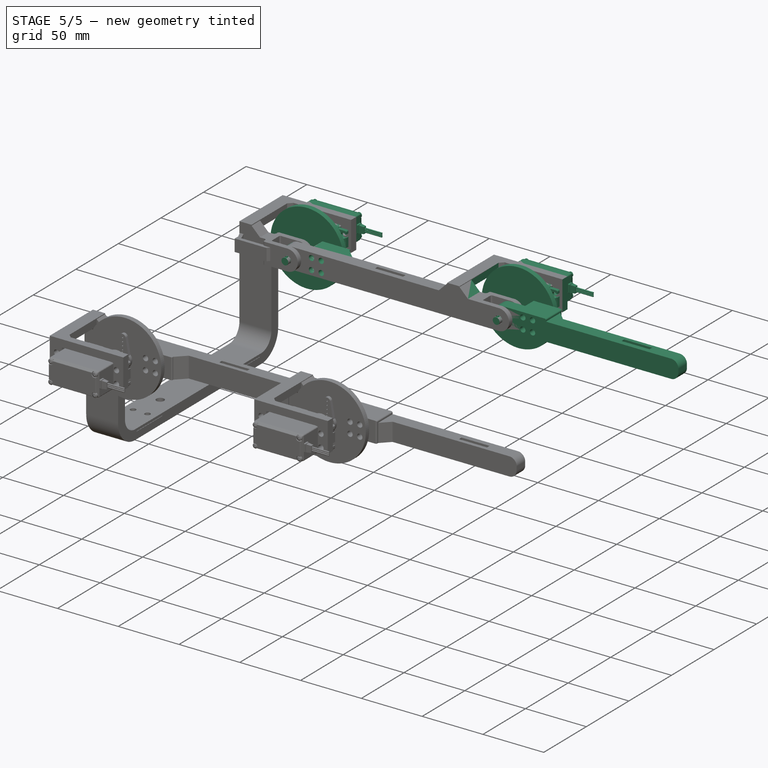
[diagram: stage 5 of 5 — iso view after this stage's code; geometry added in this stage tinted green]
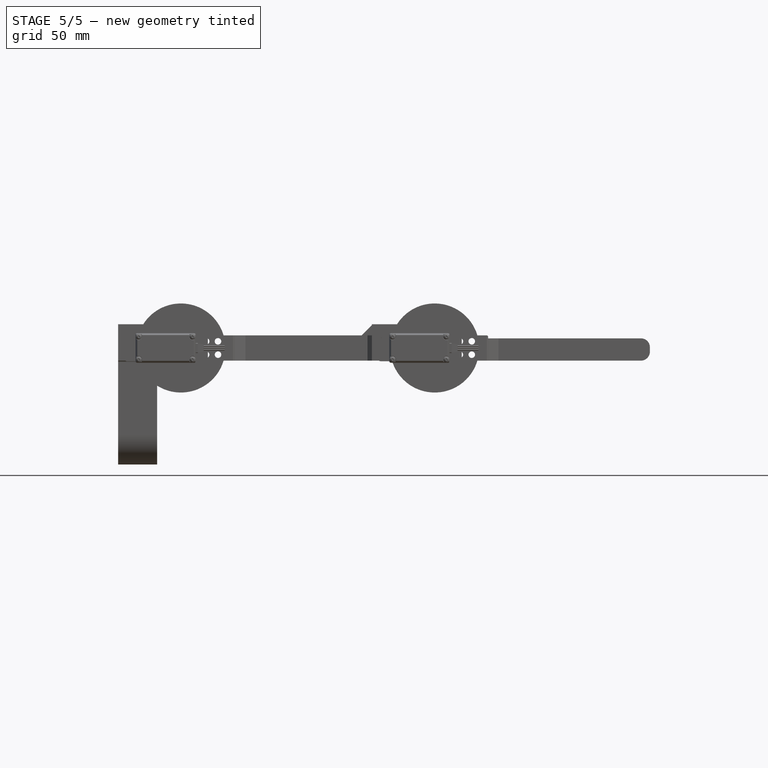
[diagram: stage 5 of 5 — front view after this stage's code; geometry added in this stage tinted green]
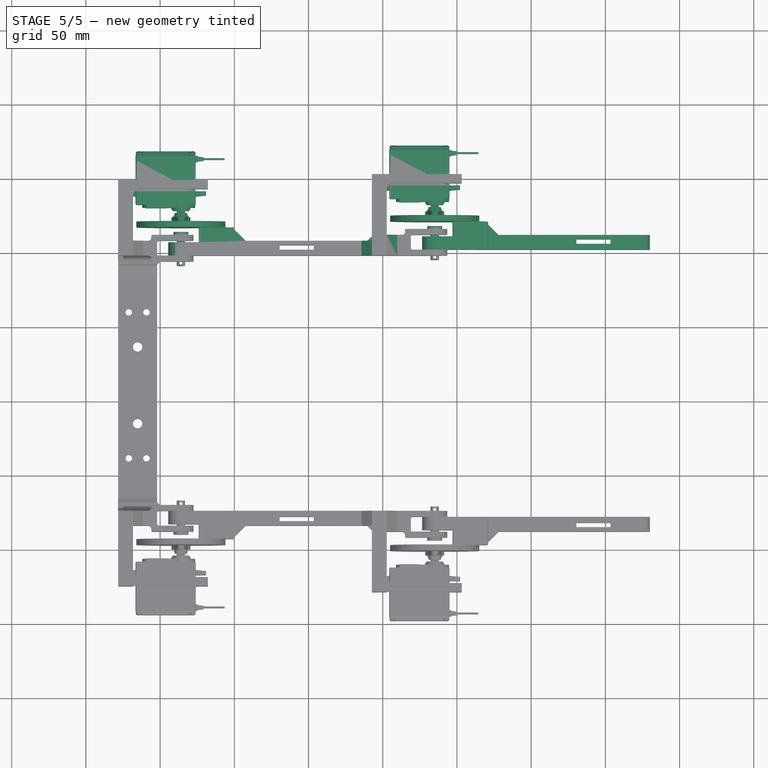
[diagram: stage 5 of 5 — top view after this stage's code; geometry added in this stage tinted green]
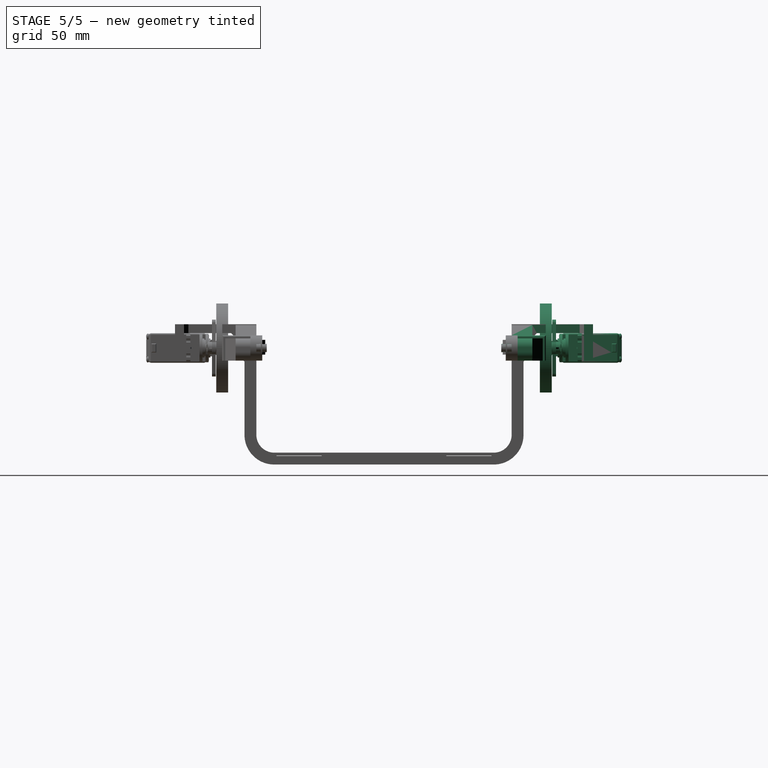
[diagram: stage 5 of 5 — right view after this stage's code; geometry added in this stage tinted green]
FEATURE [Part::Box] Box011  label="Base_tibia"
  Height = 15
  Length = 130
  Placement = pos=(200,1.5,0) rot=(0,0,1;0rad)
  Width = 10
FEATURE [Sketcher::SketchObject] Sketch003  label="Boceto_tibia_gancho"
  Placement = pos=(221,10.5,0) rot=(1,0,0;1.5708rad)
  sketch-geometry (5):
    g0: LineSegment StartX=0 StartY=17 StartZ=0 EndX=-36 EndY=17 EndZ=0
    g1: LineSegment StartX=-36 StartY=1.3e-11 StartZ=0 EndX=0 EndY=1.3e-11 EndZ=0
    g2: LineSegment StartX=0 StartY=1.3e-11 StartZ=0 EndX=0 EndY=17 EndZ=0
    g3: ArcOfCircle CenterX=-36 CenterY=8.5 CenterZ=0 NormalX=0 NormalY=0 NormalZ=1 Radius=8.5 StartAngle=1.57079 EndAngle=4.71239
    g4: Circle CenterX=-36 CenterY=8.5 CenterZ=0 NormalX=0 NormalY=0 NormalZ=1 Radius=3
  constraints (14):
    c: Coincident(g1,g2)
    c: Coincident(g2,g0)
    c: Horizontal(g0)
    c: Horizontal(g1)
    c: Vertical(g2)
    c: Coincident(g3,g0)
    c: DistanceX(g0,g0) = 36
    c: DistanceY(g2,g2) = 17
    c: Radius(g3) = 8.5
    c: Equal(g0,g1)
    c: Coincident(g3,g1)
    c: Coincident(g1,g-1)
    c: Coincident(g4,g3)
    c: Radius(g4) = 3
FEATURE [PartDesign::Pad] Pad003  label="Circulo_tibia_gancho"
  Length = 9
  Length2 = 100
  Placement = pos=(221,10.5,0) rot=(1,0,0;1.5708rad)
  Sketch = -> Sketch003
  Type = 0
FEATURE [Part::Cylinder] Cylinder009  label="Eje"
  Angle = 360
  Height = 21
  Placement = pos=(0,0,2) rot=(0,0,1;0rad)
  Radius = 2.8
FEATURE [Part::Fillet] Fillet003  label="Tibia_gancho_redondeado"
  Base = -> Pad003
  Edges = 2 edges r=1: [Edge1,Edge8]
FEATURE [Part::MultiFuse] Fusion008  label="Tibia_gancho"
  Placement = pos=(0,-0.5,0) rot=(0,0,1;0rad)
  Shapes = -> [Fillet003,Box011]
FEATURE [Part::Cylinder] Cylinder010  label="Tope_eje"
  Angle = 360
  Height = 2
  Radius = 5
FEATURE [Sketcher::SketchObject] Sketch004  label="Pin_eje"
  Placement = pos=(0,4.2,21) rot=(1,0,0;1.5708rad)
  sketch-geometry (1):
    g0: Circle CenterX=0 CenterY=0 CenterZ=0 NormalX=0 NormalY=0 NormalZ=1 Radius=1
  constraints (2):
    c: Coincident(g0,g-1)
    c: Radius(g0) = 1
FEATURE [PartDesign::Pad] Pad004
  Length = 10
  Length2 = 100
  Placement = pos=(0,4.2,21) rot=(1,0,0;1.5708rad)
  Sketch = -> Sketch004
  Type = 0
FEATURE [Part::MultiFuse] Fusion009  label="Eje_con_tope"
  Shapes = -> [Cylinder010,Cylinder009]
FEATURE [Part::Cut] Cut004  label="Eje_full"
  Base = -> Fusion009
  Placement = pos=(185,17,8.5) rot=(1,0,0;1.5708rad)
  Tool = -> Pad004
FEATURE [Part::Feature] Part__Feature013  label="TOWER PRO MG-995, ANALOG SERVO, BODY, BOTTOM001"
  Placement = pos=(-10.275,40.78,0) rot=(0.707107,0,-0.707107;3.14159rad)
  shape: bbox 40.6 x 6.4 x 19.8 mm, 74 faces (baked)
FEATURE [Part::Feature] Part__Feature014  label="TOWER PRO MG-995, ANALOG SERVO, BODY, MIDDLE001"
  Placement = pos=(-10.275,30.53,0) rot=(0.707107,0,-0.707107;3.14159rad)
  shape: bbox 40.6 x 20.5 x 19.8 mm, 10 faces (baked)
FEATURE [Part::Feature] Part__Feature015  label="TOWER PRO MG-995, ANALOG SERVO, BODY, TOP001"
  Placement = pos=(-10.275,20.28,0) rot=(0.707107,0,-0.707107;3.14159rad)
  shape: bbox 54.6 x 13.2 x 19.8 mm, 91 faces (baked)
FEATURE [Part::Feature] Part__Feature016  label="TOWER PRO MG-995, ANALOG SERVO, CONNECTOR004"
  Placement = pos=(10.025,42.0947,0) rot=(0.707107,0,-0.707107;3.14159rad)
  shape: bbox 5.4 x 4.1 x 6.8 mm, 15 faces (baked)
FEATURE [Part::Feature] Part__Feature017  label="TOWER PRO MG-995, ANALOG SERVO, CONNECTOR005"
  Placement = pos=(10.025,42.0947,0) rot=(0.707107,0,-0.707107;3.14159rad)
  shape: bbox 14 x 1.2 x 1.2 mm, 4 faces (baked)
FEATURE [Part::Feature] Part__Feature018  label="TOWER PRO MG-995, ANALOG SERVO, CONNECTOR006"
  Placement = pos=(10.025,42.0947,0) rot=(0.707107,0,-0.707107;3.14159rad)
  shape: bbox 14 x 1.2 x 1.2 mm, 4 faces (baked)
FEATURE [Part::Feature] Part__Feature019  label="TOWER PRO MG-995, ANALOG SERVO, CONNECTOR007"
  Placement = pos=(10.025,42.0947,0) rot=(0.707107,0,-0.707107;3.14159rad)
  shape: bbox 14 x 1.2 x 1.2 mm, 4 faces (baked)
FEATURE [Part::Feature] Part__Feature020  label="TOWER PRO MG-995, ANALOG SERVO, SHAFT001"
  Placement = pos=(0.025,20.28,0) rot=(0.70883,0,0.705379;3.14159rad)
  shape: bbox 5.8 x 17.5 x 5.79 mm, 191 faces (baked)
FEATURE [Part::Feature] Part__Feature021  label="TOWER PRO MG-995, ANALOG SERVO, HORN001"
  Placement = pos=(0,5.78,-0.025) rot=(0.00244,0,0.999997;3.14159rad)
  shape: bbox 12.7 x 5.75 x 38.36 mm, 132 faces (baked)
FEATURE [Part::Feature] Part__Feature022  label="pan cross head_am_B18.6.7M - M2 x 0.4 x 10 Type I Cross Recessed PHMS --10N004"
  Placement = pos=(-28.375,47.28,7.7) rot=(-0.57735,0.57735,0.57735;4.18879rad)
  shape: bbox 4.33 x 11.6 x 4.33 mm, 23 faces (baked)
FEATURE [Part::Feature] Part__Feature023  label="pan cross head_am_B18.6.7M - M2 x 0.4 x 10 Type I Cross Recessed PHMS --10N005"
  Placement = pos=(-28.375,47.28,-7.7) rot=(-0.57735,0.57735,0.57735;4.18879rad)
  shape: bbox 4.33 x 11.6 x 4.33 mm, 23 faces (baked)
FEATURE [Part::Feature] Part__Feature024  label="pan cross head_am_B18.6.7M - M2 x 0.4 x 10 Type I Cross Recessed PHMS --10N006"
  Placement = pos=(7.825,47.28,-7.7) rot=(-0.57735,0.57735,0.57735;4.18879rad)
  shape: bbox 4.33 x 11.6 x 4.33 mm, 23 faces (baked)
FEATURE [Part::Feature] Part__Feature025  label="pan cross head_am_B18.6.7M - M2 x 0.4 x 10 Type I Cross Recessed PHMS --10N007"
  Placement = pos=(7.825,47.28,7.7) rot=(-0.57735,0.57735,0.57735;4.18879rad)
  shape: bbox 4.33 x 11.6 x 4.33 mm, 23 faces (baked)
FEATURE [Part::MultiFuse] Fusion  label="Servo_MG996R"
  Placement = pos=(185,24,8.5) rot=(0,0,1;0rad)
  Shapes = -> [Part__Feature013,Part__Feature014,Part__Feature015,Part__Feature016,Part__Feature017,Part__Feature018,Part__Feature019,Part__Feature020,Part__Feature021,Part__Feature022,Part__Feature023,Part__Feature024,Part__Feature025]
FEATURE [Part::Cylinder] Cylinder  label="Taladro_suje_motor"
  Angle = 360
  Height = 18
  Placement = pos=(150.075,41,13.5) rot=(-1,0,0;1.5708rad)
  Radius = 2.2
FEATURE [Part::FeaturePython] Array  label="Taladros_suje_motor"  # Draft array (typed FeaturePython)
  Angle = 360
  ArrayType = 0
  Axis = (0,0,1)
  Base = -> Cylinder
  Center = (0,0,0)
  Fuse = false
  IntervalAxis = (0,0,0)
  IntervalX = (49.2,0,0)
  IntervalY = (0,1,0)
  IntervalZ = (0,0,-10.3)
  NumberPolar = 1
  NumberX = 2
  NumberY = 1
  NumberZ = 2
FEATURE [Part::Cut] Cut  label="Sujetador_motor"
  Base = -> Fusion009003004
  Placement = pos=(-1.725,0,0) rot=(0,0,1;0rad)
  Tool = -> Array
FEATURE [Part::Cylinder] Cylinder011  label="Circulo_traccion"
  Angle = 360
  Height = 4
  Placement = pos=(185,20,8.5) rot=(-1,0,0;1.5708rad)
  Radius = 30
FEATURE [Part::Box] Box013  label="Suj_traccion"
  Height = 17
  Length = 24
  Placement = pos=(197,10,0) rot=(0,0,1;0rad)
  Width = 10
FEATURE [Part::Fillet] Fillet  label="Suje_traccion"
  Base = -> Box013
  Edges = 4 edges r=1: [Edge2,Edge4,Edge6,Edge7]
FEATURE [Part::MultiFuse] Fusion009003007  label="Femur"
  Shapes = -> [Cut,Cut005]
FEATURE [Part::Box] Box015  label="Agarre1"
  Height = 20
  Length = 23
  Placement = pos=(280.5,5,0) rot=(0,0,1;0rad)
  Width = 3
FEATURE [Part::Cut] Cut006  label="Tibia_agarre"
  Base = -> Fusion008
  Tool = -> Box015
FEATURE [Part::MultiFuse] Fusion009003008  label="Tibia_suje_traccion"
  Shapes = -> [Fillet,Cut006]
FEATURE [Part::Chamfer] Chamfer  label="Tibia_refuerzo"
  Base = -> Fusion009003008
  Edges = 1 edges r=7: [Edge4]
FEATURE [Part::Cylinder] Cylinder012  label="Taladro_suje_traccion"
  Angle = 360
  Height = 26
  Placement = pos=(202,0,4) rot=(-1,0,0;1.5708rad)
  Radius = 2.2
FEATURE [Part::FeaturePython] Array001  label="Taladros_suje_traccion"  # Draft array (typed FeaturePython)
  Angle = 360
  ArrayType = 0
  Axis = (0,0,1)
  Base = -> Cylinder012
  Center = (0,0,0)
  Fuse = false
  IntervalAxis = (0,0,0)
  IntervalX = (8,0,0)
  IntervalY = (0,1,0)
  IntervalZ = (0,0,9)
  NumberPolar = 1
  NumberX = 2
  NumberY = 1
  NumberZ = 2
FEATURE [Part::Cut] Cut007  label="Tibia"
  Base = -> Chamfer
  Tool = -> Array001
FEATURE [Part::Cylinder] Cylinder013  label="Taladro_suje_traccion001"
  Angle = 360
  Height = 26
  Placement = pos=(202,0,4) rot=(-1,0,0;1.5708rad)
  Radius = 2.2
FEATURE [Part::FeaturePython] Array002  label="Taladros_suje_traccion001"  # Draft array (typed FeaturePython)
  Angle = 360
  ArrayType = 0
  Axis = (0,0,1)
  Base = -> Cylinder013
  Center = (0,0,0)
  Fuse = false
  IntervalAxis = (0,0,0)
  IntervalX = (8,0,0)
  IntervalY = (0,1,0)
  IntervalZ = (0,0,9)
  NumberPolar = 1
  NumberX = 2
  NumberY = 1
  NumberZ = 2
FEATURE [Part::Cut] Cut008  label="Traccion"
  Base = -> Cylinder011
  Tool = -> Array002
FEATURE [Part::Fillet] Fillet004  label="Tibia_izquierda_full"
  Base = -> Cut007
  Edges = 2 edges r=6: [Edge9,Edge21]
FEATURE [Part::Chamfer] Chamfer001  label="Femur_refuerzo_gancho"
  Base = -> Fusion009003007
  Edges = 1 edges r=3: [Edge31]
FEATURE [Part::Box] Box022  label="Suj_traccion001"
  Height = 17
  Length = 24
  Placement = pos=(26,6,0) rot=(0,0,1;0rad)
  Width = 10
FEATURE [Sketcher::SketchObject] Sketch016  label="Boceto_tibia_gancho001"
  Placement = pos=(50,6,0) rot=(1,0,0;1.5708rad)
  sketch-geometry (5):
    g0: LineSegment StartX=0 StartY=17 StartZ=0 EndX=-36 EndY=17 EndZ=0
    g1: LineSegment StartX=-36 StartY=1.3e-11 StartZ=0 EndX=0 EndY=1.3e-11 EndZ=0
    g2: LineSegment StartX=0 StartY=1.3e-11 StartZ=0 EndX=0 EndY=17 EndZ=0
    g3: ArcOfCircle CenterX=-36 CenterY=8.5 CenterZ=0 NormalX=0 NormalY=0 NormalZ=1 Radius=8.5 StartAngle=1.57079 EndAngle=4.71239
    g4: Circle CenterX=-36 CenterY=8.5 CenterZ=0 NormalX=0 NormalY=0 NormalZ=1 Radius=3
  constraints (14):
    c: Coincident(g1,g2)
    c: Coincident(g2,g0)
    c: Horizontal(g0)
    c: Horizontal(g1)
    c: Vertical(g2)
    c: Coincident(g3,g0)
    c: DistanceX(g0,g0) = 36
    c: DistanceY(g2,g2) = 17
    c: Radius(g3) = 8.5
    c: Equal(g0,g1)
    c: Coincident(g3,g1)
    c: Coincident(g1,g-1)
    c: Coincident(g4,g3)
    c: Radius(g4) = 3
FEATURE [PartDesign::Pad] Pad016  label="Circulo_tibia_gancho001"
  Length = 9
  Length2 = 100
  Placement = pos=(50,6,0) rot=(1,0,0;1.5708rad)
  Sketch = -> Sketch016
  Type = 0
FEATURE [Part::Cylinder] Cylinder015  label="Taladro_suje_traccion002"
  Angle = 360
  Height = 26
  Placement = pos=(202,0,4) rot=(-1,0,0;1.5708rad)
  Radius = 2.2
FEATURE [Part::FeaturePython] Array004  label="Taladros_suje_traccion002"  # Draft array (typed FeaturePython)
  Angle = 360
  ArrayType = 0
  Axis = (0,0,1)
  Base = -> Cylinder015
  Center = (0,0,0)
  Fuse = false
  IntervalAxis = (0,0,0)
  IntervalX = (8,0,0)
  IntervalY = (0,1,0)
  IntervalZ = (0,0,9)
  NumberPolar = 1
  NumberX = 2
  NumberY = 1
  NumberZ = 2
  Placement = pos=(-171,-5,0) rot=(0,0,1;0rad)
FEATURE [Part::Cut] Cut012  label="femur_resta_punta"
  Base = -> Chamfer001
  Tool = -> Box023
FEATURE [Part::MultiFuse] Fusion009003016  label="femur_con_ext_redondeo"
  Shapes = -> [Cut012,Pad016]
FEATURE [Part::MultiFuse] Fusion009003017  label="Femur_con_sujecion_motor2"
  Shapes = -> [Fusion009003016,Box022]
FEATURE [Part::Cut] Cut013  label="Femur_completo_sin_pulir"
  Base = -> Fusion009003017
  Tool = -> Array004
FEATURE [Part::Feature] Part__Feature026  label="TOWER PRO MG-995, ANALOG SERVO, BODY, BOTTOM002"
  Placement = pos=(-10.275,40.78,0) rot=(0.707107,0,-0.707107;3.14159rad)
  shape: bbox 40.6 x 6.4 x 19.8 mm, 74 faces (baked)
FEATURE [Part::Feature] Part__Feature027  label="TOWER PRO MG-995, ANALOG SERVO, BODY, MIDDLE002"
  Placement = pos=(-10.275,30.53,0) rot=(0.707107,0,-0.707107;3.14159rad)
  shape: bbox 40.6 x 20.5 x 19.8 mm, 10 faces (baked)
FEATURE [Part::Feature] Part__Feature028  label="TOWER PRO MG-995, ANALOG SERVO, BODY, TOP002"
  Placement = pos=(-10.275,20.28,0) rot=(0.707107,0,-0.707107;3.14159rad)
  shape: bbox 54.6 x 13.2 x 19.8 mm, 91 faces (baked)
FEATURE [Part::Feature] Part__Feature029  label="TOWER PRO MG-995, ANALOG SERVO, CONNECTOR008"
  Placement = pos=(10.025,42.0947,0) rot=(0.707107,0,-0.707107;3.14159rad)
  shape: bbox 5.4 x 4.1 x 6.8 mm, 15 faces (baked)
FEATURE [Part::Feature] Part__Feature030  label="TOWER PRO MG-995, ANALOG SERVO, CONNECTOR009"
  Placement = pos=(10.025,42.0947,0) rot=(0.707107,0,-0.707107;3.14159rad)
  shape: bbox 14 x 1.2 x 1.2 mm, 4 faces (baked)
FEATURE [Part::Feature] Part__Feature031  label="TOWER PRO MG-995, ANALOG SERVO, CONNECTOR010"
  Placement = pos=(10.025,42.0947,0) rot=(0.707107,0,-0.707107;3.14159rad)
  shape: bbox 14 x 1.2 x 1.2 mm, 4 faces (baked)
FEATURE [Part::Feature] Part__Feature032  label="TOWER PRO MG-995, ANALOG SERVO, CONNECTOR011"
  Placement = pos=(10.025,42.0947,0) rot=(0.707107,0,-0.707107;3.14159rad)
  shape: bbox 14 x 1.2 x 1.2 mm, 4 faces (baked)
FEATURE [Part::Feature] Part__Feature033  label="TOWER PRO MG-995, ANALOG SERVO, SHAFT002"
  Placement = pos=(0.025,20.28,0) rot=(0.70883,0,0.705379;3.14159rad)
  shape: bbox 5.8 x 17.5 x 5.79 mm, 191 faces (baked)
FEATURE [Part::Feature] Part__Feature034  label="TOWER PRO MG-995, ANALOG SERVO, HORN002"
  Placement = pos=(0,5.78,-0.025) rot=(0.00244,0,0.999997;3.14159rad)
  shape: bbox 12.7 x 5.75 x 38.36 mm, 132 faces (baked)
FEATURE [Part::Feature] Part__Feature035  label="pan cross head_am_B18.6.7M - M2 x 0.4 x 10 Type I Cross Recessed PHMS --10N008"
  Placement = pos=(-28.375,47.28,7.7) rot=(-0.57735,0.57735,0.57735;4.18879rad)
  shape: bbox 4.33 x 11.6 x 4.33 mm, 23 faces (baked)
FEATURE [Part::Feature] Part__Feature036  label="pan cross head_am_B18.6.7M - M2 x 0.4 x 10 Type I Cross Recessed PHMS --10N009"
  Placement = pos=(-28.375,47.28,-7.7) rot=(-0.57735,0.57735,0.57735;4.18879rad)
  shape: bbox 4.33 x 11.6 x 4.33 mm, 23 faces (baked)
FEATURE [Part::Feature] Part__Feature037  label="pan cross head_am_B18.6.7M - M2 x 0.4 x 10 Type I Cross Recessed PHMS --10N010"
  Placement = pos=(7.825,47.28,-7.7) rot=(-0.57735,0.57735,0.57735;4.18879rad)
  shape: bbox 4.33 x 11.6 x 4.33 mm, 23 faces (baked)
FEATURE [Part::Feature] Part__Feature038  label="pan cross head_am_B18.6.7M - M2 x 0.4 x 10 Type I Cross Recessed PHMS --10N011"
  Placement = pos=(7.825,47.28,7.7) rot=(-0.57735,0.57735,0.57735;4.18879rad)
  shape: bbox 4.33 x 11.6 x 4.33 mm, 23 faces (baked)
FEATURE [Part::MultiFuse] Fusion009003018  label="Servo_MG996R_1"
  Placement = pos=(14,20,8.5) rot=(0,0,1;0rad)
  Shapes = -> [Part__Feature026,Part__Feature027,Part__Feature028,Part__Feature029,Part__Feature030,Part__Feature031,Part__Feature032,Part__Feature033,Part__Feature034,Part__Feature035,Part__Feature036,Part__Feature037,Part__Feature038]
FEATURE [Part::Cylinder] Cylinder016  label="Eje001"
  Angle = 360
  Height = 21
  Placement = pos=(0,0,2) rot=(0,0,1;0rad)
  Radius = 2.8
FEATURE [Part::Cylinder] Cylinder017  label="Tope_eje001"
  Angle = 360
  Height = 2
  Radius = 5
FEATURE [Sketcher::SketchObject] Sketch017  label="Pin_eje001"
  Placement = pos=(0,4.2,21) rot=(1,0,0;1.5708rad)
  sketch-geometry (1):
    g0: Circle CenterX=0 CenterY=0 CenterZ=0 NormalX=0 NormalY=0 NormalZ=1 Radius=1
  constraints (2):
    c: Coincident(g0,g-1)
    c: Radius(g0) = 1
FEATURE [PartDesign::Pad] Pad017
  Length = 10
  Length2 = 100
  Placement = pos=(0,4.2,21) rot=(1,0,0;1.5708rad)
  Sketch = -> Sketch017
  Type = 0
FEATURE [Part::MultiFuse] Fusion009003019  label="Eje_con_tope001"
  Shapes = -> [Cylinder017,Cylinder016]
FEATURE [Part::Cut] Cut014  label="Eje_full1"
  Base = -> Fusion009003019
  Placement = pos=(14,13,8.5) rot=(1,0,0;1.5708rad)
  Tool = -> Pad017
FEATURE [Part::Cylinder] Cylinder018  label="Circulo_traccion001"
  Angle = 360
  Height = 4
  Placement = pos=(185,20,8.5) rot=(-1,0,0;1.5708rad)
  Radius = 30
FEATURE [Part::Cylinder] Cylinder019  label="Taladro_suje_traccion003"
  Angle = 360
  Height = 26
  Placement = pos=(202,0,4) rot=(-1,0,0;1.5708rad)
  Radius = 2.2
FEATURE [Part::FeaturePython] Array005  label="Taladros_suje_traccion003"  # Draft array (typed FeaturePython)
  Angle = 360
  ArrayType = 0
  Axis = (0,0,1)
  Base = -> Cylinder019
  Center = (0,0,0)
  Fuse = false
  IntervalAxis = (0,0,0)
  IntervalX = (8,0,0)
  IntervalY = (0,1,0)
  IntervalZ = (0,0,9)
  NumberPolar = 1
  NumberX = 2
  NumberY = 1
  NumberZ = 2
FEATURE [Part::Cut] Cut015  label="Traccion001"
  Base = -> Cylinder018
  Placement = pos=(-171,-4,0) rot=(0,0,1;0rad)
  Tool = -> Array005
FEATURE [Part::Cylinder] Cylinder033  label="Centro_traccion"
  Angle = 360
  Height = 10
  Placement = pos=(185,18,8.5) rot=(-1,0,0;1.5708rad)
  Radius = 2.8
FEATURE [Part::Cut] Cut030  label="Traccion_full"
  Base = -> Cut008
  Tool = -> Cylinder033
FEATURE [Part::Fillet] Fillet014  label="Femur_redondeo"
  Base = -> Cut013
  Edges = 3 edges r=1: [Edge2,Edge28,Edge36]
FEATURE [Sketcher::SketchObject] Sketch042  label="Boceto_refuerzo"
  Placement = pos=(152.7,11,17) rot=(1,0,0;1.5708rad)
  sketch-geometry (3):
    g0: LineSegment StartX=0 StartY=0 StartZ=0 EndX=0 EndY=7 EndZ=0
    g1: LineSegment StartX=0 StartY=7 StartZ=0 EndX=7 EndY=0 EndZ=0
    g2: LineSegment StartX=7 StartY=0 StartZ=0 EndX=0 EndY=0 EndZ=0
  constraints (8):
    c: Vertical(g0)
    c: Coincident(g0,g1)
    c: Coincident(g1,g2)
    c: Coincident(g2,g0)
    c: Horizontal(g2)
    c: Coincident(g0,g-1)
    c: DistanceY(g0,g0) = 7
    c: DistanceX(g2,g2) = 7
FEATURE [Sketcher::SketchObject] Sketch043  label="Boceto_refuerzo1"
  Placement = pos=(142.7,-3,17) rot=(0,0.707107,0.707107;3.14159rad)
  sketch-geometry (3):
    g0: LineSegment StartX=0 StartY=0 StartZ=0 EndX=0 EndY=7 EndZ=0
    g1: LineSegment StartX=0 StartY=7 StartZ=0 EndX=7 EndY=0 EndZ=0
    g2: LineSegment StartX=7 StartY=0 StartZ=0 EndX=0 EndY=0 EndZ=0
  constraints (8):
    c: Vertical(g0)
    c: Coincident(g0,g1)
    c: Coincident(g1,g2)
    c: Coincident(g2,g0)
    c: Horizontal(g2)
    c: Coincident(g0,g-1)
    c: DistanceY(g0,g0) = 7
    c: DistanceX(g2,g2) = 7
FEATURE [PartDesign::Pad] Pad043  label="Refuerzo2"
  Length = 10
  Length2 = 100
  Placement = pos=(142.7,-3,17) rot=(0,0.707107,0.707107;3.14159rad)
  Sketch = -> Sketch043
  Type = 0
FEATURE [Sketcher::SketchObject] Sketch044  label="Boceto_refuerzo3"
  Placement = pos=(142.7,11,18.5) rot=(0,1,0;1.5708rad)
  sketch-geometry (3):
    g0: LineSegment StartX=0 StartY=0 StartZ=0 EndX=0 EndY=3 EndZ=0
    g1: LineSegment StartX=0 StartY=3 StartZ=0 EndX=3 EndY=0 EndZ=0
    g2: LineSegment StartX=3 StartY=0 StartZ=0 EndX=0 EndY=0 EndZ=0
  constraints (8):
    c: Vertical(g0)
    c: Coincident(g0,g1)
    c: Coincident(g1,g2)
    c: Coincident(g2,g0)
    c: Horizontal(g2)
    c: Coincident(g0,g-1)
    c: DistanceY(g0,g0) = 3
    c: DistanceX(g2,g2) = 3
FEATURE [PartDesign::Pad] Pad044  label="Refuerzo3"
  Length = 10
  Length2 = 100
  Placement = pos=(142.7,11,18.5) rot=(0,1,0;1.5708rad)
  Sketch = -> Sketch044
  Type = 0
FEATURE [Sketcher::SketchObject] Sketch045  label="Boceto_refuerzo004"
  Placement = pos=(152.7,45.8,18.5) rot=(0,0,-1;1.5708rad)
  sketch-geometry (3):
    g0: LineSegment StartX=0 StartY=0 StartZ=0 EndX=0 EndY=3 EndZ=0
    g1: LineSegment StartX=0 StartY=3 StartZ=0 EndX=3 EndY=0 EndZ=0
    g2: LineSegment StartX=3 StartY=0 StartZ=0 EndX=0 EndY=0 EndZ=0
  constraints (8):
    c: Vertical(g0)
    c: Coincident(g0,g1)
    c: Coincident(g1,g2)
    c: Coincident(g2,g0)
    c: Horizontal(g2)
    c: Coincident(g0,g-1)
    c: DistanceY(g0,g0) = 3
    c: DistanceX(g2,g2) = 3
FEATURE [PartDesign::Pad] Pad045  label="Refuerzo4"
  Length = 6
  Length2 = 100
  Placement = pos=(152.7,45.8,18.5) rot=(0,0,-1;1.5708rad)
  Sketch = -> Sketch045
  Type = 0
FEATURE [PartDesign::Pad] Pad049  label="Refuerzo1"
  Length = 14
  Length2 = 100
  Placement = pos=(152.7,11,17) rot=(1,0,0;1.5708rad)
  Sketch = -> Sketch042
  Type = 0
FEATURE [Part::Chamfer] Chamfer006  label="Femur_refuerzo"
  Base = -> Fillet014
  Edges = 1 edges r=7.5: [Edge67]
FEATURE [Part::MultiFuse] Fusion009003044  label="Femur_izquierdo_full"
  Shapes = -> [Pad043,Pad044,Pad045,Pad049,Chamfer006]
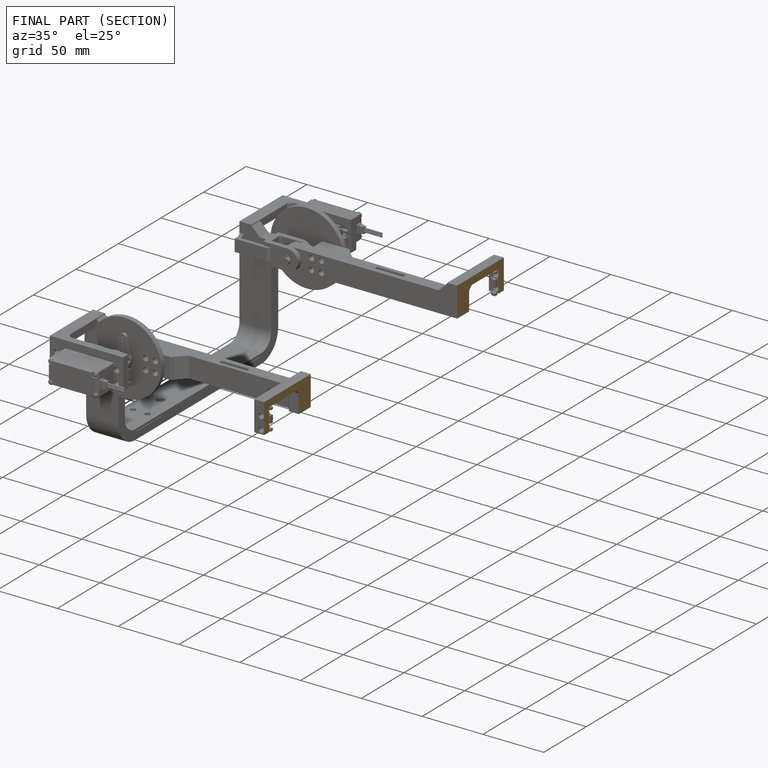
[diagram: finished part — half-section view (interior)]
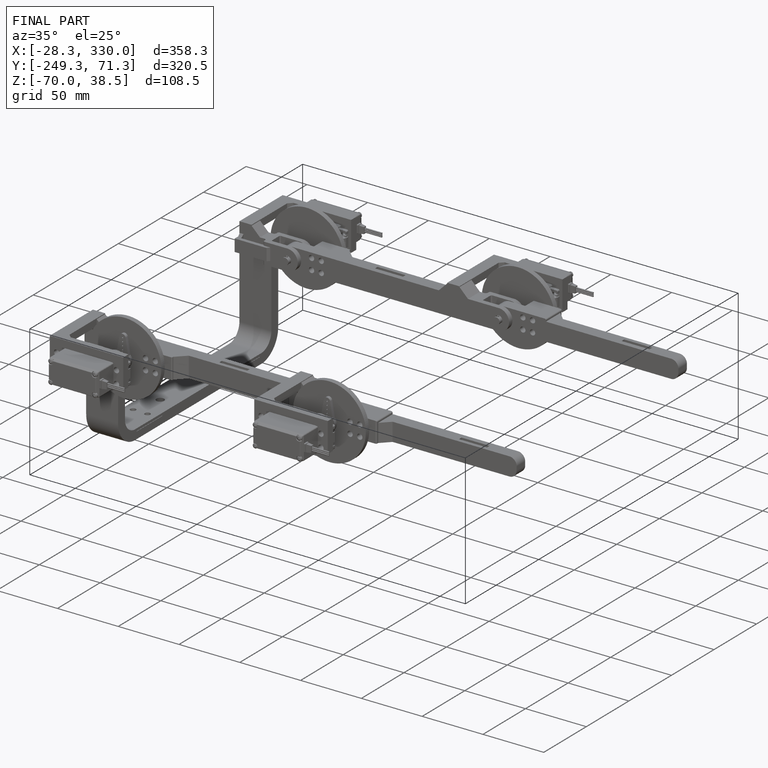
[diagram: finished part — iso view with bounding-box wireframe]
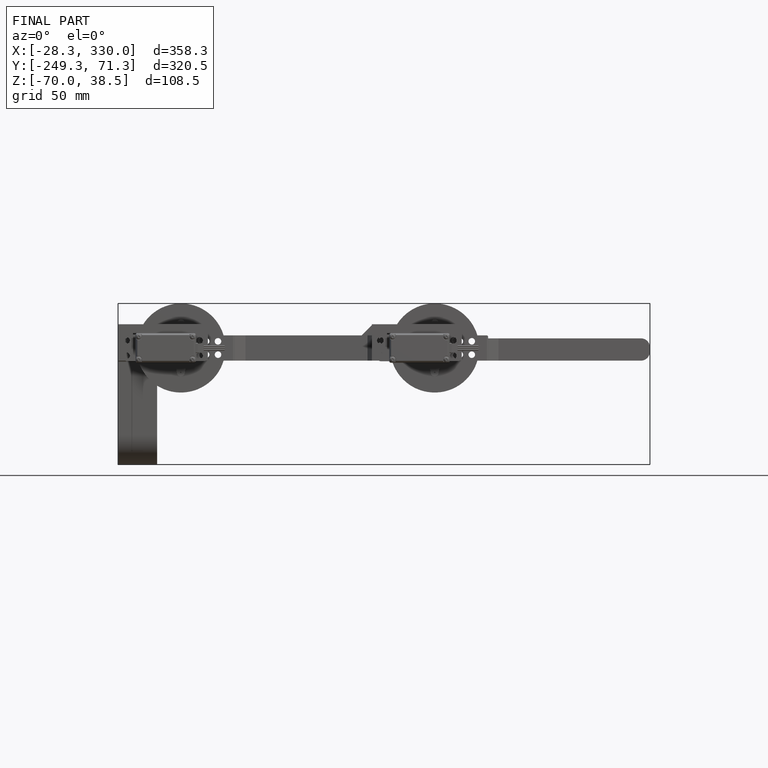
[diagram: finished part — front view with bounding-box wireframe]
